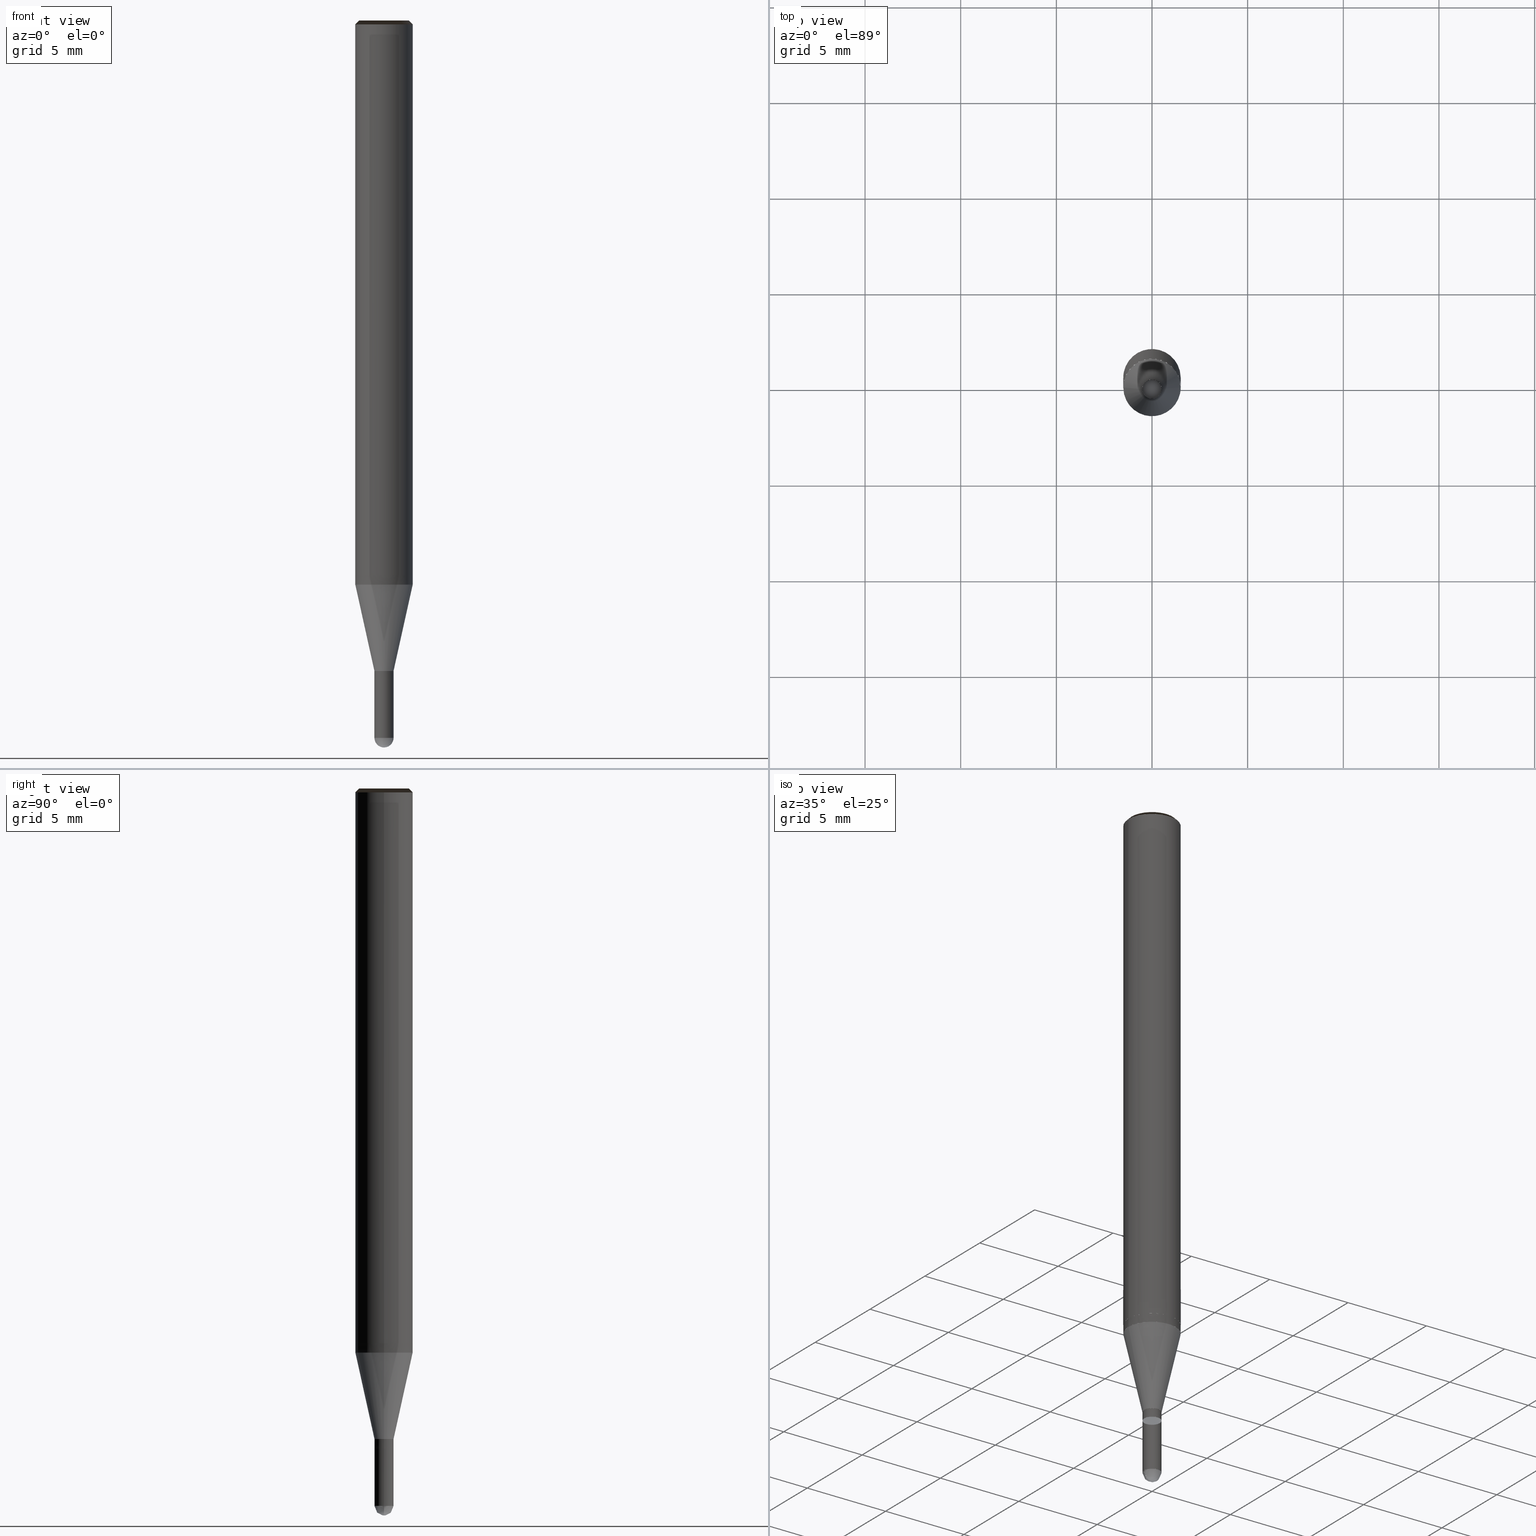
[diagram: canonical four-view strip — front | top / right | iso, engineering-drawing reading convention]
A machine part, canonical four-view strip (front | top / right | iso — engineering-drawing reading convention). The complete STEP part file that produces these views, byte-faithful:
ISO-10303-21;
HEADER;
/* Generated by ISBE GmbH (www.isbe.de) */
/* OPTION: using custom schema-name function */

FILE_DESCRIPTION(
/* description */ (''),
/* implementation_level */ '2;1');

FILE_NAME(
/*name*/ 'Drawing No  1240100   Issue  1',
/*time_stamp*/'2021-9-29T7:41:19',
/*author*/ ('ISBE GmbH'),
/*organization*/ ('ISBE GmbH'),
/*preprocessor_version*/ 'STEP IO v1.0',
/*originating_system*/ '',
/*authorisation*/ '');

FILE_SCHEMA (('AUTOMOTIVE_DESIGN'));
ENDSEC;

DATA;
#10=SHAPE_DEFINITION_REPRESENTATION(#11,#57);
#11=PRODUCT_DEFINITION_SHAPE('Document','',#13);
#12=PRODUCT_DEFINITION_CONTEXT('3D Mechanical Parts',#17,'design');
#13=PRODUCT_DEFINITION('A','First version',#14,#12);
#14=PRODUCT_DEFINITION_FORMATION_WITH_SPECIFIED_SOURCE('A','First version',#19,.MADE.);
#15=PRODUCT_RELATED_PRODUCT_CATEGORY('tool','tool',(#19));
#16=APPLICATION_PROTOCOL_DEFINITION('Draft International Standard', 'automotive_design',1999,#17);
#17=APPLICATION_CONTEXT('data for automotive mechanical design processes');
#18=PRODUCT_CONTEXT('3D Mechanical Parts',#17,'mechanical');
#19=PRODUCT('Document','Document','ISBE converted to STEP',(#18));
#20=(
LENGTH_UNIT()
NAMED_UNIT(*)
SI_UNIT(.MILLI.,.METRE.)
);
#21=(
NAMED_UNIT(*)
PLANE_ANGLE_UNIT()
SI_UNIT($,.RADIAN.)
);
#22=DIMENSIONAL_EXPONENTS(0.,0.,0.,0.,0.,0.,0.);
#23=PLANE_ANGLE_MEASURE_WITH_UNIT(PLANE_ANGLE_MEASURE(0.01745329252),#21);
#24=(
CONVERSION_BASED_UNIT('DEGREES',#23)
NAMED_UNIT(#22)
PLANE_ANGLE_UNIT()
);
#25=(
NAMED_UNIT(*)
SI_UNIT($,.STERADIAN.)
SOLID_ANGLE_UNIT()
);
#26=UNCERTAINTY_MEASURE_WITH_UNIT(LENGTH_MEASURE(0.001),#20, 'DISTANCE_ACCURACY_VALUE', 'Maximum model space distance between geometric entities at asserted connectivities');
#27=(
GEOMETRIC_REPRESENTATION_CONTEXT(3)
GLOBAL_UNCERTAINTY_ASSIGNED_CONTEXT((#26))
GLOBAL_UNIT_ASSIGNED_CONTEXT((#25,#24,#20))
REPRESENTATION_CONTEXT('ID1','3D')
);
#28=CARTESIAN_POINT('',(0.0,0.0,0.0));
#29=DIRECTION('',(1.0,0.0,0.0));
#30=DIRECTION('',(0.0,0.0,1.0));
#31=AXIS2_PLACEMENT_3D('',#28,#30,#29);
#32=CARTESIAN_POINT('',(0.0,0.0,0.0));
#33=DIRECTION('',(1.0,0.0,0.0));
#34=DIRECTION('',(0.0,0.0,1.0));
#35=AXIS2_PLACEMENT_3D('',#32,#34,#33);
#36=CARTESIAN_POINT('',(0.0,0.0,0.0));
#37=DIRECTION('',(1.0,0.0,0.0));
#38=DIRECTION('',(0.0,0.0,1.0));
#39=AXIS2_PLACEMENT_3D('',#36,#38,#37);
#40=CARTESIAN_POINT('',(0.0,0.0,0.0));
#41=DIRECTION('',(0.0,0.0,1.0));
#42=DIRECTION('',(1.0,0.0,0.0));
#43=AXIS2_PLACEMENT_3D('MCS',#40,#42,#41);
#44=CARTESIAN_POINT('',(0.0,0.0,29.0));
#45=DIRECTION('',(0.0,0.0,1.0));
#46=DIRECTION('',(1.0,0.0,0.0));
#47=AXIS2_PLACEMENT_3D('PCS',#44,#46,#45);
#48=CARTESIAN_POINT('',(0.0,0.0,-9.0));
#49=DIRECTION('',(0.0,0.0,1.0));
#50=DIRECTION('',(1.0,0.0,0.0));
#51=AXIS2_PLACEMENT_3D('CIP',#48,#50,#49);
#52=CARTESIAN_POINT('',(0.0,-0.5,-9.0));
#53=DIRECTION('',(0.0,0.0,1.0));
#54=DIRECTION('',(1.0,0.0,0.0));
#55=AXIS2_PLACEMENT_3D('CRP',#52,#54,#53);
#57=SHAPE_REPRESENTATION('Document',(#31,#35,#39,#43,#47,#51,#55),#27);
#58=DIRECTION('',(1.0,0.0,0.0));
#59=DIRECTION('',(0.0,0.0,1.0));
#60=CARTESIAN_POINT('',(-0.004999745345,-0.00005046272,-8.999919850466));
#61=CARTESIAN_POINT('',(-0.004842960385,-0.015276506175,-8.9997431081));
#62=CARTESIAN_POINT('',(-0.00464572897,-0.031696458389,-8.998972696375));
#63=CARTESIAN_POINT('',(-0.004394710529,-0.047809956029,-8.997689556475));
#64=CARTESIAN_POINT('',(-0.00405990923,-0.063809554592,-8.995895006912));
#65=CARTESIAN_POINT('',(-0.003613461023,-0.079718094076,-8.993590891707));
#66=CARTESIAN_POINT('',(-0.00302835103,-0.095531326913,-8.990779578496));
#67=CARTESIAN_POINT('',(-0.002278364859,-0.111237136631,-8.987463956091));
#68=CARTESIAN_POINT('',(-0.001338183743,-0.126820232017,-8.98364743152));
#69=CARTESIAN_POINT('',(-0.000183509393,-0.142263674959,-8.979333926518));
#70=CARTESIAN_POINT('',(0.001208804149,-0.157549471783,-8.974527873505));
#71=CARTESIAN_POINT('',(0.00286061822,-0.17265883142,-8.969234211025));
#72=CARTESIAN_POINT('',(0.004792379331,-0.187572290966,-8.963458378673));
#73=CARTESIAN_POINT('',(0.007022992398,-0.202269785918,-8.957206311508));
#74=CARTESIAN_POINT('',(0.009569698402,-0.216730698426,-8.950484433951));
#75=CARTESIAN_POINT('',(0.012447957291,-0.230933899296,-8.943299653187));
#76=CARTESIAN_POINT('',(0.015671336936,-0.244857791707,-8.935659352062));
#77=CARTESIAN_POINT('',(0.019251408963,-0.258480360904,-8.927571381503));
#78=CARTESIAN_POINT('',(0.023197652257,-0.271779232171,-8.919044052446));
#79=CARTESIAN_POINT('',(0.027517364988,-0.284731738346,-8.910086127298));
#80=CARTESIAN_POINT('',(0.032215585999,-0.297314997418,-8.900706810934));
#81=CARTESIAN_POINT('',(0.037295026389,-0.309506000365,-8.890915741234));
#82=CARTESIAN_POINT('',(0.042756012132,-0.321281709015,-8.880722979185));
#83=CARTESIAN_POINT('',(0.048596438531,-0.332619163494,-8.870138998538));
#84=CARTESIAN_POINT('',(0.054811737272,-0.343495598605,-8.859174675049));
#85=CARTESIAN_POINT('',(0.061394856808,-0.353888568272,-8.847841275302));
#86=CARTESIAN_POINT('',(0.06833625671,-0.363776077082,-8.836150445131));
#87=CARTESIAN_POINT('',(0.075623916555,-0.373136717738,-8.824114197654));
#88=CARTESIAN_POINT('',(0.083243359847,-0.381949813177,-8.811744900929));
#89=CARTESIAN_POINT('',(0.091177693304,-0.390195561959,-8.799055265246));
#90=CARTESIAN_POINT('',(0.099407661785,-0.397855185439,-8.786058330061));
#91=CARTESIAN_POINT('',(0.107911718954,-0.404911075179,-8.772767450605));
#92=CARTESIAN_POINT('',(0.116666113651,-0.411346938977,-8.759196284155));
#93=CARTESIAN_POINT('',(0.125644991799,-0.417147943869,-8.745358776002));
#94=CARTESIAN_POINT('',(0.134820513492,-0.422300854436,-8.73126914512));
#95=CARTESIAN_POINT('',(0.144162984768,-0.426794164739,-8.716941869559));
#96=CARTESIAN_POINT('',(0.153641003417,-0.430618222271,-8.702391671561));
#97=CARTESIAN_POINT('',(0.163221617973,-0.433765342309,-8.68763350244));
#98=CARTESIAN_POINT('',(0.172870498926,-0.436229911167,-8.672682527211));
#99=CARTESIAN_POINT('',(0.182552121012,-0.438008476913,-8.657554109012));
#100=CARTESIAN_POINT('',(0.192229955294,-0.439099826235,-8.642263793316));
#101=CARTESIAN_POINT('',(0.201866669635,-0.43950504628,-8.626827291955));
#102=CARTESIAN_POINT('',(0.211424336029,-0.439227570426,-8.611260466978));
#103=CARTESIAN_POINT('',(0.220864643153,-0.438273207113,-8.595579314351));
#104=CARTESIAN_POINT('',(0.230149112446,-0.436650151055,-8.579799947517));
#105=CARTESIAN_POINT('',(0.239239315921,-0.434368976329,-8.563938580842));
#106=CARTESIAN_POINT('',(0.248097093905,-0.431442611039,-8.548011512954));
#107=CARTESIAN_POINT('',(0.256684770868,-0.427886293462,-8.53203510999));
#108=CARTESIAN_POINT('',(0.264965367515,-0.4237175098,-8.516025788786));
#109=CARTESIAN_POINT('',(0.272902807337,-0.418955913847,-8.5));
#110=CARTESIAN_POINT('',(0.296295683547,-0.402751620619,-8.450704225352));
#111=CARTESIAN_POINT('',(0.318728791934,-0.385242725035,-8.401408450704));
#112=CARTESIAN_POINT('',(0.340129466653,-0.366485942315,-8.352112676056));
#113=CARTESIAN_POINT('',(0.360428386145,-0.346542029862,-8.302816901408));
#114=CARTESIAN_POINT('',(0.379559797681,-0.325475590459,-8.253521126761));
#115=CARTESIAN_POINT('',(0.397461730349,-0.303354863003,-8.204225352113));
#116=CARTESIAN_POINT('',(0.414076195797,-0.280251501466,-8.154929577465));
#117=CARTESIAN_POINT('',(0.429349376065,-0.25624034279,-8.105633802817));
#118=CARTESIAN_POINT('',(0.443231797912,-0.231399164474,-8.056338028169));
#119=CARTESIAN_POINT('',(0.455678493079,-0.205808432639,-8.007042253521));
#120=CARTESIAN_POINT('',(0.466649143942,-0.179551041373,-7.957746478873));
#121=CARTESIAN_POINT('',(0.476108214116,-0.152712044225,-7.908450704225));
#122=CARTESIAN_POINT('',(0.484025063562,-0.125378378695,-7.859154929577));
#123=CARTESIAN_POINT('',(0.490374047838,-0.097638584624,-7.80985915493));
#124=CARTESIAN_POINT('',(0.495134601167,-0.069582517393,-7.760563380282));
#125=CARTESIAN_POINT('',(0.498291303057,-0.041301056864,-7.711267605634));
#126=CARTESIAN_POINT('',(0.499833928244,-0.012885812998,-7.661971830986));
#127=CARTESIAN_POINT('',(0.499757479821,0.015571170892,-7.612676056338));
#128=CARTESIAN_POINT('',(0.498062205423,0.043977716285,-7.56338028169));
#129=CARTESIAN_POINT('',(0.49475359642,0.072241808043,-7.514084507042));
#130=CARTESIAN_POINT('',(0.489842370137,0.100271892468,-7.464788732394));
#131=CARTESIAN_POINT('',(0.483344435129,0.127977173861,-7.415492957746));
#132=CARTESIAN_POINT('',(0.47528083966,0.155267908636,-7.366197183099));
#133=CARTESIAN_POINT('',(0.465677703513,0.182055696014,-7.316901408451));
#134=CARTESIAN_POINT('',(0.454566133389,0.208253764374,-7.267605633803));
#135=CARTESIAN_POINT('',(0.441982122142,0.23377725233,-7.218309859155));
#136=CARTESIAN_POINT('',(0.427966432193,0.258543483608,-7.169014084507));
#137=CARTESIAN_POINT('',(0.412564463488,0.282472234859,-7.119718309859));
#138=CARTESIAN_POINT('',(0.395826106441,0.305485995521,-7.070422535211));
#139=CARTESIAN_POINT('',(0.377805580324,0.327510218888,-7.021126760563));
#140=CARTESIAN_POINT('',(0.358561257641,0.348473563587,-6.971830985915));
#141=CARTESIAN_POINT('',(0.338155475048,0.368308124666,-6.922535211268));
#142=CARTESIAN_POINT('',(0.316654331427,0.386949653558,-6.87323943662));
#143=CARTESIAN_POINT('',(0.294127473779,0.404337766191,-6.823943661972));
#144=CARTESIAN_POINT('',(0.270647871621,0.42041613859,-6.774647887324));
#145=CARTESIAN_POINT('',(0.246291580625,0.435132689318,-6.725352112676));
#146=CARTESIAN_POINT('',(0.221137496249,0.448439748185,-6.676056338028));
#147=CARTESIAN_POINT('',(0.195267098187,0.460294210659,-6.62676056338));
#148=CARTESIAN_POINT('',(0.168764186427,0.470657677489,-6.577464788732));
#149=CARTESIAN_POINT('',(0.141714609816,0.479496579096,-6.528169014085));
#150=CARTESIAN_POINT('',(0.114205987967,0.486782284304,-6.478873239437));
#151=CARTESIAN_POINT('',(0.086327427442,0.49249119309,-6.429577464789));
#152=CARTESIAN_POINT('',(0.05816923312,0.496604813024,-6.380281690141));
#153=CARTESIAN_POINT('',(0.029822615673,0.499109819172,-6.330985915493));
#154=CARTESIAN_POINT('',(0.001379396121,0.499998097263,-6.281690140845));
#155=CARTESIAN_POINT('',(-0.027068291603,0.499266769963,-6.232394366197));
#156=CARTESIAN_POINT('',(-0.055428299091,0.496918206207,-6.183098591549));
#157=CARTESIAN_POINT('',(-0.083608761952,0.492960013515,-6.133802816901));
#158=CARTESIAN_POINT('',(-0.11151839738,0.487405013357,-6.084507042254));
#159=CARTESIAN_POINT('',(-0.139066799838,0.480271199618,-6.035211267606));
#160=CARTESIAN_POINT('',(-0.166164733904,0.471581680313,-5.985915492958));
#161=CARTESIAN_POINT('',(-0.192724423326,0.461364602732,-5.93661971831));
#162=CARTESIAN_POINT('',(-0.218659835342,0.449653062269,-5.887323943662));
#163=CARTESIAN_POINT('',(-0.243886959367,0.436484995218,-5.838028169014));
#164=CARTESIAN_POINT('',(-0.268324079119,0.421903055885,-5.788732394366));
#165=CARTESIAN_POINT('',(-0.291892037313,0.405954478425,-5.739436619718));
#166=CARTESIAN_POINT('',(-0.314514492076,0.388690923838,-5.69014084507));
#167=CARTESIAN_POINT('',(-0.336118164229,0.37016831263,-5.640845070423));
#168=CARTESIAN_POINT('',(-0.356633074658,0.350446643671,-5.591549295775));
#169=CARTESIAN_POINT('',(-0.375992770991,0.329589799846,-5.542253521127));
#170=CARTESIAN_POINT('',(0.004999745345,0.00005046272,-8.999919850466));
#171=CARTESIAN_POINT('',(0.004842960385,0.015276506175,-8.9997431081));
#172=CARTESIAN_POINT('',(0.00464572897,0.031696458389,-8.998972696375));
#173=CARTESIAN_POINT('',(0.004394710529,0.047809956029,-8.997689556475));
#174=CARTESIAN_POINT('',(0.00405990923,0.063809554592,-8.995895006912));
#175=CARTESIAN_POINT('',(0.003613461023,0.079718094076,-8.993590891707));
#176=CARTESIAN_POINT('',(0.00302835103,0.095531326913,-8.990779578496));
#177=CARTESIAN_POINT('',(0.002278364859,0.111237136631,-8.987463956091));
#178=CARTESIAN_POINT('',(0.001338183743,0.126820232017,-8.98364743152));
#179=CARTESIAN_POINT('',(0.000183509393,0.142263674959,-8.979333926518));
#180=CARTESIAN_POINT('',(-0.001208804149,0.157549471783,-8.974527873505));
#181=CARTESIAN_POINT('',(-0.00286061822,0.17265883142,-8.969234211025));
#182=CARTESIAN_POINT('',(-0.004792379331,0.187572290966,-8.963458378673));
#183=CARTESIAN_POINT('',(-0.007022992398,0.202269785918,-8.957206311508));
#184=CARTESIAN_POINT('',(-0.009569698402,0.216730698426,-8.950484433951));
#185=CARTESIAN_POINT('',(-0.012447957291,0.230933899296,-8.943299653187));
#186=CARTESIAN_POINT('',(-0.015671336936,0.244857791707,-8.935659352062));
#187=CARTESIAN_POINT('',(-0.019251408963,0.258480360904,-8.927571381503));
#188=CARTESIAN_POINT('',(-0.023197652257,0.271779232171,-8.919044052446));
#189=CARTESIAN_POINT('',(-0.027517364988,0.284731738346,-8.910086127298));
#190=CARTESIAN_POINT('',(-0.032215585999,0.297314997418,-8.900706810934));
#191=CARTESIAN_POINT('',(-0.037295026389,0.309506000365,-8.890915741234));
#192=CARTESIAN_POINT('',(-0.042756012132,0.321281709015,-8.880722979185));
#193=CARTESIAN_POINT('',(-0.048596438531,0.332619163494,-8.870138998538));
#194=CARTESIAN_POINT('',(-0.054811737272,0.343495598605,-8.859174675049));
#195=CARTESIAN_POINT('',(-0.061394856808,0.353888568272,-8.847841275302));
#196=CARTESIAN_POINT('',(-0.06833625671,0.363776077082,-8.836150445131));
#197=CARTESIAN_POINT('',(-0.075623916555,0.373136717738,-8.824114197654));
#198=CARTESIAN_POINT('',(-0.083243359847,0.381949813177,-8.811744900929));
#199=CARTESIAN_POINT('',(-0.091177693304,0.390195561959,-8.799055265246));
#200=CARTESIAN_POINT('',(-0.099407661785,0.397855185439,-8.786058330061));
#201=CARTESIAN_POINT('',(-0.107911718954,0.404911075179,-8.772767450605));
#202=CARTESIAN_POINT('',(-0.116666113651,0.411346938977,-8.759196284155));
#203=CARTESIAN_POINT('',(-0.125644991799,0.417147943869,-8.745358776002));
#204=CARTESIAN_POINT('',(-0.134820513492,0.422300854436,-8.73126914512));
#205=CARTESIAN_POINT('',(-0.144162984768,0.426794164739,-8.716941869559));
#206=CARTESIAN_POINT('',(-0.153641003417,0.430618222271,-8.702391671561));
#207=CARTESIAN_POINT('',(-0.163221617973,0.433765342309,-8.68763350244));
#208=CARTESIAN_POINT('',(-0.172870498926,0.436229911167,-8.672682527211));
#209=CARTESIAN_POINT('',(-0.182552121012,0.438008476913,-8.657554109012));
#210=CARTESIAN_POINT('',(-0.192229955294,0.439099826235,-8.642263793316));
#211=CARTESIAN_POINT('',(-0.201866669635,0.43950504628,-8.626827291955));
#212=CARTESIAN_POINT('',(-0.211424336029,0.439227570426,-8.611260466978));
#213=CARTESIAN_POINT('',(-0.220864643153,0.438273207113,-8.595579314351));
#214=CARTESIAN_POINT('',(-0.230149112446,0.436650151055,-8.579799947517));
#215=CARTESIAN_POINT('',(-0.239239315921,0.434368976329,-8.563938580842));
#216=CARTESIAN_POINT('',(-0.248097093905,0.431442611039,-8.548011512954));
#217=CARTESIAN_POINT('',(-0.256684770868,0.427886293462,-8.53203510999));
#218=CARTESIAN_POINT('',(-0.264965367515,0.4237175098,-8.516025788786));
#219=CARTESIAN_POINT('',(-0.272902807337,0.418955913847,-8.5));
#220=CARTESIAN_POINT('',(-0.296295683547,0.402751620619,-8.450704225352));
#221=CARTESIAN_POINT('',(-0.318728791934,0.385242725035,-8.401408450704));
#222=CARTESIAN_POINT('',(-0.340129466653,0.366485942315,-8.352112676056));
#223=CARTESIAN_POINT('',(-0.360428386145,0.346542029862,-8.302816901408));
#224=CARTESIAN_POINT('',(-0.379559797681,0.325475590459,-8.253521126761));
#225=CARTESIAN_POINT('',(-0.397461730349,0.303354863003,-8.204225352113));
#226=CARTESIAN_POINT('',(-0.414076195797,0.280251501466,-8.154929577465));
#227=CARTESIAN_POINT('',(-0.429349376065,0.25624034279,-8.105633802817));
#228=CARTESIAN_POINT('',(-0.443231797912,0.231399164474,-8.056338028169));
#229=CARTESIAN_POINT('',(-0.455678493079,0.205808432639,-8.007042253521));
#230=CARTESIAN_POINT('',(-0.466649143942,0.179551041373,-7.957746478873));
#231=CARTESIAN_POINT('',(-0.476108214116,0.152712044225,-7.908450704225));
#232=CARTESIAN_POINT('',(-0.484025063562,0.125378378695,-7.859154929577));
#233=CARTESIAN_POINT('',(-0.490374047838,0.097638584624,-7.80985915493));
#234=CARTESIAN_POINT('',(-0.495134601167,0.069582517393,-7.760563380282));
#235=CARTESIAN_POINT('',(-0.498291303057,0.041301056864,-7.711267605634));
#236=CARTESIAN_POINT('',(-0.499833928244,0.012885812998,-7.661971830986));
#237=CARTESIAN_POINT('',(-0.499757479821,-0.015571170892,-7.612676056338));
#238=CARTESIAN_POINT('',(-0.498062205423,-0.043977716285,-7.56338028169));
#239=CARTESIAN_POINT('',(-0.49475359642,-0.072241808043,-7.514084507042));
#240=CARTESIAN_POINT('',(-0.489842370137,-0.100271892468,-7.464788732394));
#241=CARTESIAN_POINT('',(-0.483344435129,-0.127977173861,-7.415492957746));
#242=CARTESIAN_POINT('',(-0.47528083966,-0.155267908636,-7.366197183099));
#243=CARTESIAN_POINT('',(-0.465677703513,-0.182055696014,-7.316901408451));
#244=CARTESIAN_POINT('',(-0.454566133389,-0.208253764374,-7.267605633803));
#245=CARTESIAN_POINT('',(-0.441982122142,-0.23377725233,-7.218309859155));
#246=CARTESIAN_POINT('',(-0.427966432193,-0.258543483608,-7.169014084507));
#247=CARTESIAN_POINT('',(-0.412564463488,-0.282472234859,-7.119718309859));
#248=CARTESIAN_POINT('',(-0.395826106441,-0.305485995521,-7.070422535211));
#249=CARTESIAN_POINT('',(-0.377805580324,-0.327510218888,-7.021126760563));
#250=CARTESIAN_POINT('',(-0.358561257641,-0.348473563587,-6.971830985915));
#251=CARTESIAN_POINT('',(-0.338155475048,-0.368308124666,-6.922535211268));
#252=CARTESIAN_POINT('',(-0.316654331427,-0.386949653558,-6.87323943662));
#253=CARTESIAN_POINT('',(-0.294127473779,-0.404337766191,-6.823943661972));
#254=CARTESIAN_POINT('',(-0.270647871621,-0.42041613859,-6.774647887324));
#255=CARTESIAN_POINT('',(-0.246291580625,-0.435132689318,-6.725352112676));
#256=CARTESIAN_POINT('',(-0.221137496249,-0.448439748185,-6.676056338028));
#257=CARTESIAN_POINT('',(-0.195267098187,-0.460294210659,-6.62676056338));
#258=CARTESIAN_POINT('',(-0.168764186427,-0.470657677489,-6.577464788732));
#259=CARTESIAN_POINT('',(-0.141714609816,-0.479496579096,-6.528169014085));
#260=CARTESIAN_POINT('',(-0.114205987967,-0.486782284304,-6.478873239437));
#261=CARTESIAN_POINT('',(-0.086327427442,-0.49249119309,-6.429577464789));
#262=CARTESIAN_POINT('',(-0.05816923312,-0.496604813024,-6.380281690141));
#263=CARTESIAN_POINT('',(-0.029822615673,-0.499109819172,-6.330985915493));
#264=CARTESIAN_POINT('',(-0.001379396121,-0.499998097263,-6.281690140845));
#265=CARTESIAN_POINT('',(0.027068291603,-0.499266769963,-6.232394366197));
#266=CARTESIAN_POINT('',(0.055428299091,-0.496918206207,-6.183098591549));
#267=CARTESIAN_POINT('',(0.083608761952,-0.492960013515,-6.133802816901));
#268=CARTESIAN_POINT('',(0.11151839738,-0.487405013357,-6.084507042254));
#269=CARTESIAN_POINT('',(0.139066799838,-0.480271199618,-6.035211267606));
#270=CARTESIAN_POINT('',(0.166164733904,-0.471581680313,-5.985915492958));
#271=CARTESIAN_POINT('',(0.192724423326,-0.461364602732,-5.93661971831));
#272=CARTESIAN_POINT('',(0.218659835342,-0.449653062269,-5.887323943662));
#273=CARTESIAN_POINT('',(0.243886959367,-0.436484995218,-5.838028169014));
#274=CARTESIAN_POINT('',(0.268324079119,-0.421903055885,-5.788732394366));
#275=CARTESIAN_POINT('',(0.291892037313,-0.405954478425,-5.739436619718));
#276=CARTESIAN_POINT('',(0.314514492076,-0.388690923838,-5.69014084507));
#277=CARTESIAN_POINT('',(0.336118164229,-0.37016831263,-5.640845070423));
#278=CARTESIAN_POINT('',(0.356633074658,-0.350446643671,-5.591549295775));
#279=CARTESIAN_POINT('',(0.375992770991,-0.329589799846,-5.542253521127));
#280=CARTESIAN_POINT('',(0.0,0.0,-9.0));
#281=CARTESIAN_POINT('',(0.5,0.0,-9.0));
#282=CARTESIAN_POINT('',(0.5,0.5,-9.0));
#283=CARTESIAN_POINT('',(0.0,0.5,-9.0));
#284=CARTESIAN_POINT('',(-0.5,0.5,-9.0));
#285=CARTESIAN_POINT('',(-0.5,0.0,-9.0));
#286=CARTESIAN_POINT('',(0.5,0.0,-8.5));
#287=CARTESIAN_POINT('',(0.5,0.5,-8.5));
#288=CARTESIAN_POINT('',(0.0,0.5,-8.5));
#289=CARTESIAN_POINT('',(-0.5,0.5,-8.5));
#290=CARTESIAN_POINT('',(-0.5,0.0,-8.5));
#291=CARTESIAN_POINT('',(0.5,0.0,-5.5));
#292=CARTESIAN_POINT('',(0.5,0.5,-5.5));
#293=CARTESIAN_POINT('',(0.0,0.5,-5.5));
#294=CARTESIAN_POINT('',(-0.5,0.5,-5.5));
#295=CARTESIAN_POINT('',(-0.5,0.0,-5.5));
#296=CARTESIAN_POINT('',(0.0,0.0,-5.5));
#297=CARTESIAN_POINT('',(-0.5,-0.5,-9.0));
#298=CARTESIAN_POINT('',(0.0,-0.5,-9.0));
#299=CARTESIAN_POINT('',(0.5,-0.5,-9.0));
#300=CARTESIAN_POINT('',(-0.5,-0.5,-8.5));
#301=CARTESIAN_POINT('',(0.0,-0.5,-8.5));
#302=CARTESIAN_POINT('',(0.5,-0.5,-8.5));
#303=CARTESIAN_POINT('',(-0.5,-0.5,-5.5));
#304=CARTESIAN_POINT('',(0.0,-0.5,-5.5));
#305=CARTESIAN_POINT('',(0.5,-0.5,-5.5));
#306=CARTESIAN_POINT('',(0.5,0.0,-5.0));
#307=CARTESIAN_POINT('',(0.5,0.5,-5.0));
#308=CARTESIAN_POINT('',(0.0,0.5,-5.0));
#309=CARTESIAN_POINT('',(-0.5,0.5,-5.0));
#310=CARTESIAN_POINT('',(-0.5,0.0,-5.0));
#311=CARTESIAN_POINT('',(1.5,0.0,-0.489291496338));
#312=CARTESIAN_POINT('',(1.5,1.5,-0.489291496338));
#313=CARTESIAN_POINT('',(0.0,1.5,-0.489291496338));
#314=CARTESIAN_POINT('',(-1.5,1.5,-0.489291496338));
#315=CARTESIAN_POINT('',(-1.5,0.0,-0.489291496338));
#316=CARTESIAN_POINT('',(1.5,0.0,0.0));
#317=CARTESIAN_POINT('',(1.5,1.5,0.0));
#318=CARTESIAN_POINT('',(0.0,1.5,0.0));
#319=CARTESIAN_POINT('',(-1.5,1.5,0.0));
#320=CARTESIAN_POINT('',(-1.5,0.0,0.0));
#321=CARTESIAN_POINT('',(1.5,0.0,28.8));
#322=CARTESIAN_POINT('',(1.5,1.5,28.8));
#323=CARTESIAN_POINT('',(0.0,1.5,28.8));
#324=CARTESIAN_POINT('',(-1.5,1.5,28.8));
#325=CARTESIAN_POINT('',(-1.5,0.0,28.8));
#326=CARTESIAN_POINT('',(1.3,0.0,29.0));
#327=CARTESIAN_POINT('',(1.3,1.3,29.0));
#328=CARTESIAN_POINT('',(0.0,1.3,29.0));
#329=CARTESIAN_POINT('',(-1.3,1.3,29.0));
#330=CARTESIAN_POINT('',(-1.3,0.0,29.0));
#331=CARTESIAN_POINT('',(0.0,0.0,29.0));
#332=CARTESIAN_POINT('',(-0.5,-0.5,-5.0));
#333=CARTESIAN_POINT('',(0.0,-0.5,-5.0));
#334=CARTESIAN_POINT('',(0.5,-0.5,-5.0));
#335=CARTESIAN_POINT('',(-1.5,-1.5,-0.489291496338));
#336=CARTESIAN_POINT('',(0.0,-1.5,-0.489291496338));
#337=CARTESIAN_POINT('',(1.5,-1.5,-0.489291496338));
#338=CARTESIAN_POINT('',(-1.5,-1.5,0.0));
#339=CARTESIAN_POINT('',(0.0,-1.5,0.0));
#340=CARTESIAN_POINT('',(1.5,-1.5,0.0));
#341=CARTESIAN_POINT('',(-1.5,-1.5,28.8));
#342=CARTESIAN_POINT('',(0.0,-1.5,28.8));
#343=CARTESIAN_POINT('',(1.5,-1.5,28.8));
#344=CARTESIAN_POINT('',(-1.3,-1.3,29.0));
#345=CARTESIAN_POINT('',(0.0,-1.3,29.0));
#346=CARTESIAN_POINT('',(1.3,-1.3,29.0));
#347=(
BOUNDED_CURVE()
B_SPLINE_CURVE(1,(#60,#61,#62,#63,#64,#65,#66,#67,#68,#69,#70,#71,#72,#73,#74,#75,#76,#77,#78,#79,#80,#81,#82,#83,#84,#85,#86,#87,#88,#89,#90,#91,#92,#93,#94,#95,#96,#97,#98,#99,#100,#101,#102,#103,#104,#105,#106,#107,#108,#109,#110,#111,#112,#113,#114,#115,#116,#117,#118,#119,#120,#121,#122,#123,#124,#125,#126,#127,#128,#129,#130,#131,#132,#133,#134,#135,#136,#137,#138,#139,#140,#141,#142,#143,#144,#145,#146,#147,#148,#149,#150,#151,#152,#153,#154,#155,#156,#157,#158,#159,#160,#161,#162,#163,#164,#165,#166,#167,#168,#169),.UNSPECIFIED.,.F.,.F.)
B_SPLINE_CURVE_WITH_KNOTS((2,1,1,1,1,1,1,1,1,1,1,1,1,1,1,1,1,1,1,1,1,1,1,1,1,1,1,1,1,1,1,1,1,1,1,1,1,1,1,1,1,1,1,1,1,1,1,1,1,1,1,1,1,1,1,1,1,1,1,1,1,1,1,1,1,1,1,1,1,1,1,1,1,1,1,1,1,1,1,1,1,1,1,1,1,1,1,1,1,1,1,1,1,1,1,1,1,1,1,1,1,1,1,1,1,1,1,1,1,2),
(0.0,0.003584441347,0.007454012083,0.011259382447,0.015049911704,0.018835103656,0.022618203849,0.026400748348,0.030183691049,0.033967782346,0.037753723502,0.041542238313,0.045334108913,0.049130193623,0.052931434479,0.056738858,0.060553571044,0.06437675279,0.068209643535,0.072053530848,0.075909733528,0.079779583813,0.08366440828,0.087565507885,0.09148413758,0.095421485952,0.099378655308,0.103356642601,0.107356321575,0.111378426433,0.115423537324,0.119492067857,0.123584254828,0.127700150272,0.131839615907,0.136002320007,0.140187736668,0.144395147433,0.148623645173,0.152872140127,0.157139367967,0.161423899738,0.165724153528,0.170038407691,0.174364815457,0.17870142077,0.183046175157,0.187396955473,0.191751582344,0.196107839132,0.209506041813,0.222904244494,0.236302447176,0.249700649857,0.263098852538,0.276497055219,0.2898952579,0.303293460581,0.316691663262,0.330089865944,0.343488068625,0.356886271306,0.370284473987,0.383682676668,0.397080879349,0.41047908203,0.423877284711,0.437275487393,0.450673690074,0.464071892755,0.477470095436,0.490868298117,0.504266500798,0.517664703479,0.53106290616,0.544461108842,0.557859311523,0.571257514204,0.584655716885,0.598053919566,0.611452122247,0.624850324928,0.63824852761,0.651646730291,0.665044932972,0.678443135653,0.691841338334,0.705239541015,0.718637743696,0.732035946377,0.745434149059,0.75883235174,0.772230554421,0.785628757102,0.799026959783,0.812425162464,0.825823365145,0.839221567826,0.852619770508,0.866017973189,0.87941617587,0.892814378551,0.906212581232,0.919610783913,0.933008986594,0.946407189275,0.959805391957,0.973203594638,0.986601797319,1.0),.UNSPECIFIED.)
CURVE()
GEOMETRIC_REPRESENTATION_ITEM()
RATIONAL_B_SPLINE_CURVE((1.0,1.0,1.0,1.0,1.0,1.0,1.0,1.0,1.0,1.0,1.0,1.0,1.0,1.0,1.0,1.0,1.0,1.0,1.0,1.0,1.0,1.0,1.0,1.0,1.0,1.0,1.0,1.0,1.0,1.0,1.0,1.0,1.0,1.0,1.0,1.0,1.0,1.0,1.0,1.0,1.0,1.0,1.0,1.0,1.0,1.0,1.0,1.0,1.0,1.0,1.0,1.0,1.0,1.0,1.0,1.0,1.0,1.0,1.0,1.0,1.0,1.0,1.0,1.0,1.0,1.0,1.0,1.0,1.0,1.0,1.0,1.0,1.0,1.0,1.0,1.0,1.0,1.0,1.0,1.0,1.0,1.0,1.0,1.0,1.0,1.0,1.0,1.0,1.0,1.0,1.0,1.0,1.0,1.0,1.0,1.0,1.0,1.0,1.0,1.0,1.0,1.0,1.0,1.0,1.0,1.0,1.0,1.0,1.0,1.0))
REPRESENTATION_ITEM('')
);
#348=(
BOUNDED_CURVE()
B_SPLINE_CURVE(1,(#170,#171,#172,#173,#174,#175,#176,#177,#178,#179,#180,#181,#182,#183,#184,#185,#186,#187,#188,#189,#190,#191,#192,#193,#194,#195,#196,#197,#198,#199,#200,#201,#202,#203,#204,#205,#206,#207,#208,#209,#210,#211,#212,#213,#214,#215,#216,#217,#218,#219,#220,#221,#222,#223,#224,#225,#226,#227,#228,#229,#230,#231,#232,#233,#234,#235,#236,#237,#238,#239,#240,#241,#242,#243,#244,#245,#246,#247,#248,#249,#250,#251,#252,#253,#254,#255,#256,#257,#258,#259,#260,#261,#262,#263,#264,#265,#266,#267,#268,#269,#270,#271,#272,#273,#274,#275,#276,#277,#278,#279),.UNSPECIFIED.,.F.,.F.)
B_SPLINE_CURVE_WITH_KNOTS((2,1,1,1,1,1,1,1,1,1,1,1,1,1,1,1,1,1,1,1,1,1,1,1,1,1,1,1,1,1,1,1,1,1,1,1,1,1,1,1,1,1,1,1,1,1,1,1,1,1,1,1,1,1,1,1,1,1,1,1,1,1,1,1,1,1,1,1,1,1,1,1,1,1,1,1,1,1,1,1,1,1,1,1,1,1,1,1,1,1,1,1,1,1,1,1,1,1,1,1,1,1,1,1,1,1,1,1,1,2),
(0.0,0.003584441347,0.007454012083,0.011259382447,0.015049911704,0.018835103656,0.022618203849,0.026400748348,0.030183691049,0.033967782346,0.037753723502,0.041542238313,0.045334108913,0.049130193623,0.052931434479,0.056738858,0.060553571044,0.06437675279,0.068209643535,0.072053530848,0.075909733528,0.079779583813,0.08366440828,0.087565507885,0.09148413758,0.095421485952,0.099378655308,0.103356642601,0.107356321575,0.111378426433,0.115423537324,0.119492067857,0.123584254828,0.127700150272,0.131839615907,0.136002320007,0.140187736668,0.144395147433,0.148623645173,0.152872140127,0.157139367967,0.161423899738,0.165724153528,0.170038407691,0.174364815457,0.17870142077,0.183046175157,0.187396955473,0.191751582344,0.196107839132,0.209506041813,0.222904244494,0.236302447176,0.249700649857,0.263098852538,0.276497055219,0.2898952579,0.303293460581,0.316691663262,0.330089865944,0.343488068625,0.356886271306,0.370284473987,0.383682676668,0.397080879349,0.41047908203,0.423877284711,0.437275487393,0.450673690074,0.464071892755,0.477470095436,0.490868298117,0.504266500798,0.517664703479,0.53106290616,0.544461108842,0.557859311523,0.571257514204,0.584655716885,0.598053919566,0.611452122247,0.624850324928,0.63824852761,0.651646730291,0.665044932972,0.678443135653,0.691841338334,0.705239541015,0.718637743696,0.732035946377,0.745434149059,0.75883235174,0.772230554421,0.785628757102,0.799026959783,0.812425162464,0.825823365145,0.839221567826,0.852619770508,0.866017973189,0.87941617587,0.892814378551,0.906212581232,0.919610783913,0.933008986594,0.946407189275,0.959805391957,0.973203594638,0.986601797319,1.0),.UNSPECIFIED.)
CURVE()
GEOMETRIC_REPRESENTATION_ITEM()
RATIONAL_B_SPLINE_CURVE((1.0,1.0,1.0,1.0,1.0,1.0,1.0,1.0,1.0,1.0,1.0,1.0,1.0,1.0,1.0,1.0,1.0,1.0,1.0,1.0,1.0,1.0,1.0,1.0,1.0,1.0,1.0,1.0,1.0,1.0,1.0,1.0,1.0,1.0,1.0,1.0,1.0,1.0,1.0,1.0,1.0,1.0,1.0,1.0,1.0,1.0,1.0,1.0,1.0,1.0,1.0,1.0,1.0,1.0,1.0,1.0,1.0,1.0,1.0,1.0,1.0,1.0,1.0,1.0,1.0,1.0,1.0,1.0,1.0,1.0,1.0,1.0,1.0,1.0,1.0,1.0,1.0,1.0,1.0,1.0,1.0,1.0,1.0,1.0,1.0,1.0,1.0,1.0,1.0,1.0,1.0,1.0,1.0,1.0,1.0,1.0,1.0,1.0,1.0,1.0,1.0,1.0,1.0,1.0,1.0,1.0,1.0,1.0,1.0,1.0))
REPRESENTATION_ITEM('')
);
#349=SHAPE_REPRESENTATION_RELATIONSHIP('','',#57,#350);
#350=GEOMETRICALLY_BOUNDED_WIREFRAME_SHAPE_REPRESENTATION('Curves',(#351,#31),#27);
#351=GEOMETRIC_CURVE_SET('CurveSet',(#347,#348));
#352=(
BOUNDED_SURFACE()
B_SPLINE_SURFACE(2,2,(
(#280,#280,#280,#280,#280),
(#281,#282,#283,#284,#285),
(#286,#287,#288,#289,#290)
), .UNSPECIFIED.,.F.,.F.,.F.)
B_SPLINE_SURFACE_WITH_KNOTS((3,3),(3,2,3),(
0.0,1.0),(
0.0,0.5,1.0), .UNSPECIFIED.)
GEOMETRIC_REPRESENTATION_ITEM()
RATIONAL_B_SPLINE_SURFACE(((1.0,0.707106781187,1.0,0.707106781187,1.0),
(0.707106781187,0.5,0.707106781187,0.5,0.707106781187),
(1.0,0.707106781187,1.0,0.707106781187,1.0)
))
REPRESENTATION_ITEM('')
SURFACE()
);
#353=(
BOUNDED_CURVE()
B_SPLINE_CURVE(2,(#290,#285,#280),.UNSPECIFIED.,.F.,.F.)
B_SPLINE_CURVE_WITH_KNOTS((3,3),
(0.0,1.0),.UNSPECIFIED.)
CURVE()
GEOMETRIC_REPRESENTATION_ITEM()
RATIONAL_B_SPLINE_CURVE((1.0,0.707106781187,1.0))
REPRESENTATION_ITEM('')
);
#354=(
BOUNDED_CURVE()
B_SPLINE_CURVE(2,(#280,#281,#286),.UNSPECIFIED.,.F.,.F.)
B_SPLINE_CURVE_WITH_KNOTS((3,3),
(0.0,1.0),.UNSPECIFIED.)
CURVE()
GEOMETRIC_REPRESENTATION_ITEM()
RATIONAL_B_SPLINE_CURVE((1.0,0.707106781187,1.0))
REPRESENTATION_ITEM('')
);
#355=(
BOUNDED_CURVE()
B_SPLINE_CURVE(2,(#286,#287,#288,#289,#290),.UNSPECIFIED.,.F.,.F.)
B_SPLINE_CURVE_WITH_KNOTS((3,2,3),
(0.0,0.5,1.0),.UNSPECIFIED.)
CURVE()
GEOMETRIC_REPRESENTATION_ITEM()
RATIONAL_B_SPLINE_CURVE((1.0,0.707106781187,1.0,0.707106781187,1.0))
REPRESENTATION_ITEM('')
);
#356=VERTEX_POINT('',#280);
#357=VERTEX_POINT('',#286);
#358=VERTEX_POINT('',#290);
#359=EDGE_CURVE('',#358,#356,#353,.T.);
#360=EDGE_CURVE('',#356,#357,#354,.T.);
#361=EDGE_CURVE('',#357,#358,#355,.T.);
#362=ORIENTED_EDGE('',*,*,#359,.T.);
#363=ORIENTED_EDGE('',*,*,#360,.T.);
#364=ORIENTED_EDGE('',*,*,#361,.T.);
#365=EDGE_LOOP('',(#362,#363,#364));
#366=FACE_OUTER_BOUND('',#365,.T.);
#367=ADVANCED_FACE('',(#366),#352,.T.);
#368=(
BOUNDED_SURFACE()
B_SPLINE_SURFACE(1,2,(
(#286,#287,#288,#289,#290),
(#291,#292,#293,#294,#295)
), .UNSPECIFIED.,.F.,.F.,.F.)
B_SPLINE_SURFACE_WITH_KNOTS((2,2),(3,2,3),(
0.0,1.0),(
0.0,0.5,1.0), .UNSPECIFIED.)
GEOMETRIC_REPRESENTATION_ITEM()
RATIONAL_B_SPLINE_SURFACE(((1.0,0.707106781187,1.0,0.707106781187,1.0),
(1.0,0.707106781187,1.0,0.707106781187,1.0)
))
REPRESENTATION_ITEM('')
SURFACE()
);
#369=(
BOUNDED_CURVE()
B_SPLINE_CURVE(2,(#290,#289,#288,#287,#286),.UNSPECIFIED.,.F.,.F.)
B_SPLINE_CURVE_WITH_KNOTS((3,2,3),
(0.0,0.5,1.0),.UNSPECIFIED.)
CURVE()
GEOMETRIC_REPRESENTATION_ITEM()
RATIONAL_B_SPLINE_CURVE((1.0,0.707106781187,1.0,0.707106781187,1.0))
REPRESENTATION_ITEM('')
);
#370=(
BOUNDED_CURVE()
B_SPLINE_CURVE(1,(#286,#291),.UNSPECIFIED.,.F.,.F.)
B_SPLINE_CURVE_WITH_KNOTS((2,2),
(0.0,1.0),.UNSPECIFIED.)
CURVE()
GEOMETRIC_REPRESENTATION_ITEM()
RATIONAL_B_SPLINE_CURVE((1.0,1.0))
REPRESENTATION_ITEM('')
);
#371=(
BOUNDED_CURVE()
B_SPLINE_CURVE(2,(#291,#292,#293,#294,#295),.UNSPECIFIED.,.F.,.F.)
B_SPLINE_CURVE_WITH_KNOTS((3,2,3),
(0.0,0.5,1.0),.UNSPECIFIED.)
CURVE()
GEOMETRIC_REPRESENTATION_ITEM()
RATIONAL_B_SPLINE_CURVE((1.0,0.707106781187,1.0,0.707106781187,1.0))
REPRESENTATION_ITEM('')
);
#372=(
BOUNDED_CURVE()
B_SPLINE_CURVE(1,(#295,#290),.UNSPECIFIED.,.F.,.F.)
B_SPLINE_CURVE_WITH_KNOTS((2,2),
(0.0,1.0),.UNSPECIFIED.)
CURVE()
GEOMETRIC_REPRESENTATION_ITEM()
RATIONAL_B_SPLINE_CURVE((1.0,1.0))
REPRESENTATION_ITEM('')
);
#373=VERTEX_POINT('',#286);
#374=VERTEX_POINT('',#290);
#375=VERTEX_POINT('',#291);
#376=VERTEX_POINT('',#295);
#377=EDGE_CURVE('',#374,#373,#369,.T.);
#378=EDGE_CURVE('',#373,#375,#370,.T.);
#379=EDGE_CURVE('',#375,#376,#371,.T.);
#380=EDGE_CURVE('',#376,#374,#372,.T.);
#381=ORIENTED_EDGE('',*,*,#377,.T.);
#382=ORIENTED_EDGE('',*,*,#378,.T.);
#383=ORIENTED_EDGE('',*,*,#379,.T.);
#384=ORIENTED_EDGE('',*,*,#380,.T.);
#385=EDGE_LOOP('',(#381,#382,#383,#384));
#386=FACE_OUTER_BOUND('',#385,.T.);
#387=ADVANCED_FACE('',(#386),#368,.T.);
#388=(
BOUNDED_SURFACE()
B_SPLINE_SURFACE(1,2,(
(#291,#292,#293,#294,#295),
(#296,#296,#296,#296,#296)
), .UNSPECIFIED.,.F.,.F.,.F.)
B_SPLINE_SURFACE_WITH_KNOTS((2,2),(3,2,3),(
0.0,1.0),(
0.0,0.5,1.0), .UNSPECIFIED.)
GEOMETRIC_REPRESENTATION_ITEM()
RATIONAL_B_SPLINE_SURFACE(((1.0,0.707106781187,1.0,0.707106781187,1.0),
(1.0,0.707106781187,1.0,0.707106781187,1.0)
))
REPRESENTATION_ITEM('')
SURFACE()
);
#389=(
BOUNDED_CURVE()
B_SPLINE_CURVE(2,(#295,#294,#293,#292,#291),.UNSPECIFIED.,.F.,.F.)
B_SPLINE_CURVE_WITH_KNOTS((3,2,3),
(0.0,0.5,1.0),.UNSPECIFIED.)
CURVE()
GEOMETRIC_REPRESENTATION_ITEM()
RATIONAL_B_SPLINE_CURVE((1.0,0.707106781187,1.0,0.707106781187,1.0))
REPRESENTATION_ITEM('')
);
#390=(
BOUNDED_CURVE()
B_SPLINE_CURVE(1,(#291,#296),.UNSPECIFIED.,.F.,.F.)
B_SPLINE_CURVE_WITH_KNOTS((2,2),
(0.0,1.0),.UNSPECIFIED.)
CURVE()
GEOMETRIC_REPRESENTATION_ITEM()
RATIONAL_B_SPLINE_CURVE((1.0,1.0))
REPRESENTATION_ITEM('')
);
#391=(
BOUNDED_CURVE()
B_SPLINE_CURVE(1,(#296,#295),.UNSPECIFIED.,.F.,.F.)
B_SPLINE_CURVE_WITH_KNOTS((2,2),
(0.0,1.0),.UNSPECIFIED.)
CURVE()
GEOMETRIC_REPRESENTATION_ITEM()
RATIONAL_B_SPLINE_CURVE((1.0,1.0))
REPRESENTATION_ITEM('')
);
#392=VERTEX_POINT('',#291);
#393=VERTEX_POINT('',#295);
#394=VERTEX_POINT('',#296);
#395=EDGE_CURVE('',#393,#392,#389,.T.);
#396=EDGE_CURVE('',#392,#394,#390,.T.);
#397=EDGE_CURVE('',#394,#393,#391,.T.);
#398=ORIENTED_EDGE('',*,*,#395,.T.);
#399=ORIENTED_EDGE('',*,*,#396,.T.);
#400=ORIENTED_EDGE('',*,*,#397,.T.);
#401=EDGE_LOOP('',(#398,#399,#400));
#402=FACE_OUTER_BOUND('',#401,.T.);
#403=ADVANCED_FACE('',(#402),#388,.T.);
#404=(
BOUNDED_SURFACE()
B_SPLINE_SURFACE(2,2,(
(#280,#280,#280,#280,#280),
(#285,#297,#298,#299,#281),
(#290,#300,#301,#302,#286)
), .UNSPECIFIED.,.F.,.F.,.F.)
B_SPLINE_SURFACE_WITH_KNOTS((3,3),(3,2,3),(
0.0,1.0),(
0.0,0.5,1.0), .UNSPECIFIED.)
GEOMETRIC_REPRESENTATION_ITEM()
RATIONAL_B_SPLINE_SURFACE(((1.0,0.707106781187,1.0,0.707106781187,1.0),
(0.707106781187,0.5,0.707106781187,0.5,0.707106781187),
(1.0,0.707106781187,1.0,0.707106781187,1.0)
))
REPRESENTATION_ITEM('')
SURFACE()
);
#405=(
BOUNDED_CURVE()
B_SPLINE_CURVE(2,(#286,#281,#280),.UNSPECIFIED.,.F.,.F.)
B_SPLINE_CURVE_WITH_KNOTS((3,3),
(0.0,1.0),.UNSPECIFIED.)
CURVE()
GEOMETRIC_REPRESENTATION_ITEM()
RATIONAL_B_SPLINE_CURVE((1.0,0.707106781187,1.0))
REPRESENTATION_ITEM('')
);
#406=(
BOUNDED_CURVE()
B_SPLINE_CURVE(2,(#280,#285,#290),.UNSPECIFIED.,.F.,.F.)
B_SPLINE_CURVE_WITH_KNOTS((3,3),
(0.0,1.0),.UNSPECIFIED.)
CURVE()
GEOMETRIC_REPRESENTATION_ITEM()
RATIONAL_B_SPLINE_CURVE((1.0,0.707106781187,1.0))
REPRESENTATION_ITEM('')
);
#407=(
BOUNDED_CURVE()
B_SPLINE_CURVE(2,(#290,#300,#301,#302,#286),.UNSPECIFIED.,.F.,.F.)
B_SPLINE_CURVE_WITH_KNOTS((3,2,3),
(0.0,0.5,1.0),.UNSPECIFIED.)
CURVE()
GEOMETRIC_REPRESENTATION_ITEM()
RATIONAL_B_SPLINE_CURVE((1.0,0.707106781187,1.0,0.707106781187,1.0))
REPRESENTATION_ITEM('')
);
#408=VERTEX_POINT('',#280);
#409=VERTEX_POINT('',#286);
#410=VERTEX_POINT('',#290);
#411=EDGE_CURVE('',#409,#408,#405,.T.);
#412=EDGE_CURVE('',#408,#410,#406,.T.);
#413=EDGE_CURVE('',#410,#409,#407,.T.);
#414=ORIENTED_EDGE('',*,*,#411,.T.);
#415=ORIENTED_EDGE('',*,*,#412,.T.);
#416=ORIENTED_EDGE('',*,*,#413,.T.);
#417=EDGE_LOOP('',(#414,#415,#416));
#418=FACE_OUTER_BOUND('',#417,.T.);
#419=ADVANCED_FACE('',(#418),#404,.T.);
#420=(
BOUNDED_SURFACE()
B_SPLINE_SURFACE(1,2,(
(#290,#300,#301,#302,#286),
(#295,#303,#304,#305,#291)
), .UNSPECIFIED.,.F.,.F.,.F.)
B_SPLINE_SURFACE_WITH_KNOTS((2,2),(3,2,3),(
0.0,1.0),(
0.0,0.5,1.0), .UNSPECIFIED.)
GEOMETRIC_REPRESENTATION_ITEM()
RATIONAL_B_SPLINE_SURFACE(((1.0,0.707106781187,1.0,0.707106781187,1.0),
(1.0,0.707106781187,1.0,0.707106781187,1.0)
))
REPRESENTATION_ITEM('')
SURFACE()
);
#421=(
BOUNDED_CURVE()
B_SPLINE_CURVE(2,(#286,#302,#301,#300,#290),.UNSPECIFIED.,.F.,.F.)
B_SPLINE_CURVE_WITH_KNOTS((3,2,3),
(0.0,0.5,1.0),.UNSPECIFIED.)
CURVE()
GEOMETRIC_REPRESENTATION_ITEM()
RATIONAL_B_SPLINE_CURVE((1.0,0.707106781187,1.0,0.707106781187,1.0))
REPRESENTATION_ITEM('')
);
#422=(
BOUNDED_CURVE()
B_SPLINE_CURVE(1,(#290,#295),.UNSPECIFIED.,.F.,.F.)
B_SPLINE_CURVE_WITH_KNOTS((2,2),
(0.0,1.0),.UNSPECIFIED.)
CURVE()
GEOMETRIC_REPRESENTATION_ITEM()
RATIONAL_B_SPLINE_CURVE((1.0,1.0))
REPRESENTATION_ITEM('')
);
#423=(
BOUNDED_CURVE()
B_SPLINE_CURVE(2,(#295,#303,#304,#305,#291),.UNSPECIFIED.,.F.,.F.)
B_SPLINE_CURVE_WITH_KNOTS((3,2,3),
(0.0,0.5,1.0),.UNSPECIFIED.)
CURVE()
GEOMETRIC_REPRESENTATION_ITEM()
RATIONAL_B_SPLINE_CURVE((1.0,0.707106781187,1.0,0.707106781187,1.0))
REPRESENTATION_ITEM('')
);
#424=(
BOUNDED_CURVE()
B_SPLINE_CURVE(1,(#291,#286),.UNSPECIFIED.,.F.,.F.)
B_SPLINE_CURVE_WITH_KNOTS((2,2),
(0.0,1.0),.UNSPECIFIED.)
CURVE()
GEOMETRIC_REPRESENTATION_ITEM()
RATIONAL_B_SPLINE_CURVE((1.0,1.0))
REPRESENTATION_ITEM('')
);
#425=VERTEX_POINT('',#286);
#426=VERTEX_POINT('',#290);
#427=VERTEX_POINT('',#291);
#428=VERTEX_POINT('',#295);
#429=EDGE_CURVE('',#425,#426,#421,.T.);
#430=EDGE_CURVE('',#426,#428,#422,.T.);
#431=EDGE_CURVE('',#428,#427,#423,.T.);
#432=EDGE_CURVE('',#427,#425,#424,.T.);
#433=ORIENTED_EDGE('',*,*,#429,.T.);
#434=ORIENTED_EDGE('',*,*,#430,.T.);
#435=ORIENTED_EDGE('',*,*,#431,.T.);
#436=ORIENTED_EDGE('',*,*,#432,.T.);
#437=EDGE_LOOP('',(#433,#434,#435,#436));
#438=FACE_OUTER_BOUND('',#437,.T.);
#439=ADVANCED_FACE('',(#438),#420,.T.);
#440=(
BOUNDED_SURFACE()
B_SPLINE_SURFACE(1,2,(
(#295,#303,#304,#305,#291),
(#296,#296,#296,#296,#296)
), .UNSPECIFIED.,.F.,.F.,.F.)
B_SPLINE_SURFACE_WITH_KNOTS((2,2),(3,2,3),(
0.0,1.0),(
0.0,0.5,1.0), .UNSPECIFIED.)
GEOMETRIC_REPRESENTATION_ITEM()
RATIONAL_B_SPLINE_SURFACE(((1.0,0.707106781187,1.0,0.707106781187,1.0),
(1.0,0.707106781187,1.0,0.707106781187,1.0)
))
REPRESENTATION_ITEM('')
SURFACE()
);
#441=(
BOUNDED_CURVE()
B_SPLINE_CURVE(2,(#291,#305,#304,#303,#295),.UNSPECIFIED.,.F.,.F.)
B_SPLINE_CURVE_WITH_KNOTS((3,2,3),
(0.0,0.5,1.0),.UNSPECIFIED.)
CURVE()
GEOMETRIC_REPRESENTATION_ITEM()
RATIONAL_B_SPLINE_CURVE((1.0,0.707106781187,1.0,0.707106781187,1.0))
REPRESENTATION_ITEM('')
);
#442=(
BOUNDED_CURVE()
B_SPLINE_CURVE(1,(#295,#296),.UNSPECIFIED.,.F.,.F.)
B_SPLINE_CURVE_WITH_KNOTS((2,2),
(0.0,1.0),.UNSPECIFIED.)
CURVE()
GEOMETRIC_REPRESENTATION_ITEM()
RATIONAL_B_SPLINE_CURVE((1.0,1.0))
REPRESENTATION_ITEM('')
);
#443=(
BOUNDED_CURVE()
B_SPLINE_CURVE(1,(#296,#291),.UNSPECIFIED.,.F.,.F.)
B_SPLINE_CURVE_WITH_KNOTS((2,2),
(0.0,1.0),.UNSPECIFIED.)
CURVE()
GEOMETRIC_REPRESENTATION_ITEM()
RATIONAL_B_SPLINE_CURVE((1.0,1.0))
REPRESENTATION_ITEM('')
);
#444=VERTEX_POINT('',#291);
#445=VERTEX_POINT('',#295);
#446=VERTEX_POINT('',#296);
#447=EDGE_CURVE('',#444,#445,#441,.T.);
#448=EDGE_CURVE('',#445,#446,#442,.T.);
#449=EDGE_CURVE('',#446,#444,#443,.T.);
#450=ORIENTED_EDGE('',*,*,#447,.T.);
#451=ORIENTED_EDGE('',*,*,#448,.T.);
#452=ORIENTED_EDGE('',*,*,#449,.T.);
#453=EDGE_LOOP('',(#450,#451,#452));
#454=FACE_OUTER_BOUND('',#453,.T.);
#455=ADVANCED_FACE('',(#454),#440,.T.);
#456=CLOSED_SHELL('',(#367,#387,#403,#419,#439,#455));
#457=SHAPE_REPRESENTATION_RELATIONSHIP('','',#57,#458);
#458=ADVANCED_BREP_SHAPE_REPRESENTATION('Solid0',(#459,#31),#27);
#459=MANIFOLD_SOLID_BREP('brep',#456);
#460=(
BOUNDED_SURFACE()
B_SPLINE_SURFACE(1,2,(
(#296,#296,#296,#296,#296),
(#291,#292,#293,#294,#295)
), .UNSPECIFIED.,.F.,.F.,.F.)
B_SPLINE_SURFACE_WITH_KNOTS((2,2),(3,2,3),(
0.0,1.0),(
0.0,0.5,1.0), .UNSPECIFIED.)
GEOMETRIC_REPRESENTATION_ITEM()
RATIONAL_B_SPLINE_SURFACE(((1.0,0.707106781187,1.0,0.707106781187,1.0),
(1.0,0.707106781187,1.0,0.707106781187,1.0)
))
REPRESENTATION_ITEM('')
SURFACE()
);
#461=(
BOUNDED_CURVE()
B_SPLINE_CURVE(1,(#295,#296),.UNSPECIFIED.,.F.,.F.)
B_SPLINE_CURVE_WITH_KNOTS((2,2),
(0.0,1.0),.UNSPECIFIED.)
CURVE()
GEOMETRIC_REPRESENTATION_ITEM()
RATIONAL_B_SPLINE_CURVE((1.0,1.0))
REPRESENTATION_ITEM('')
);
#462=(
BOUNDED_CURVE()
B_SPLINE_CURVE(1,(#296,#291),.UNSPECIFIED.,.F.,.F.)
B_SPLINE_CURVE_WITH_KNOTS((2,2),
(0.0,1.0),.UNSPECIFIED.)
CURVE()
GEOMETRIC_REPRESENTATION_ITEM()
RATIONAL_B_SPLINE_CURVE((1.0,1.0))
REPRESENTATION_ITEM('')
);
#463=(
BOUNDED_CURVE()
B_SPLINE_CURVE(2,(#291,#292,#293,#294,#295),.UNSPECIFIED.,.F.,.F.)
B_SPLINE_CURVE_WITH_KNOTS((3,2,3),
(0.0,0.5,1.0),.UNSPECIFIED.)
CURVE()
GEOMETRIC_REPRESENTATION_ITEM()
RATIONAL_B_SPLINE_CURVE((1.0,0.707106781187,1.0,0.707106781187,1.0))
REPRESENTATION_ITEM('')
);
#464=VERTEX_POINT('',#291);
#465=VERTEX_POINT('',#295);
#466=VERTEX_POINT('',#296);
#467=EDGE_CURVE('',#465,#466,#461,.T.);
#468=EDGE_CURVE('',#466,#464,#462,.T.);
#469=EDGE_CURVE('',#464,#465,#463,.T.);
#470=ORIENTED_EDGE('',*,*,#467,.T.);
#471=ORIENTED_EDGE('',*,*,#468,.T.);
#472=ORIENTED_EDGE('',*,*,#469,.T.);
#473=EDGE_LOOP('',(#470,#471,#472));
#474=FACE_OUTER_BOUND('',#473,.T.);
#475=ADVANCED_FACE('',(#474),#460,.T.);
#476=(
BOUNDED_SURFACE()
B_SPLINE_SURFACE(1,2,(
(#291,#292,#293,#294,#295),
(#306,#307,#308,#309,#310)
), .UNSPECIFIED.,.F.,.F.,.F.)
B_SPLINE_SURFACE_WITH_KNOTS((2,2),(3,2,3),(
0.0,1.0),(
0.0,0.5,1.0), .UNSPECIFIED.)
GEOMETRIC_REPRESENTATION_ITEM()
RATIONAL_B_SPLINE_SURFACE(((1.0,0.707106781187,1.0,0.707106781187,1.0),
(1.0,0.707106781187,1.0,0.707106781187,1.0)
))
REPRESENTATION_ITEM('')
SURFACE()
);
#477=(
BOUNDED_CURVE()
B_SPLINE_CURVE(2,(#295,#294,#293,#292,#291),.UNSPECIFIED.,.F.,.F.)
B_SPLINE_CURVE_WITH_KNOTS((3,2,3),
(0.0,0.5,1.0),.UNSPECIFIED.)
CURVE()
GEOMETRIC_REPRESENTATION_ITEM()
RATIONAL_B_SPLINE_CURVE((1.0,0.707106781187,1.0,0.707106781187,1.0))
REPRESENTATION_ITEM('')
);
#478=(
BOUNDED_CURVE()
B_SPLINE_CURVE(1,(#291,#306),.UNSPECIFIED.,.F.,.F.)
B_SPLINE_CURVE_WITH_KNOTS((2,2),
(0.0,1.0),.UNSPECIFIED.)
CURVE()
GEOMETRIC_REPRESENTATION_ITEM()
RATIONAL_B_SPLINE_CURVE((1.0,1.0))
REPRESENTATION_ITEM('')
);
#479=(
BOUNDED_CURVE()
B_SPLINE_CURVE(2,(#306,#307,#308,#309,#310),.UNSPECIFIED.,.F.,.F.)
B_SPLINE_CURVE_WITH_KNOTS((3,2,3),
(0.0,0.5,1.0),.UNSPECIFIED.)
CURVE()
GEOMETRIC_REPRESENTATION_ITEM()
RATIONAL_B_SPLINE_CURVE((1.0,0.707106781187,1.0,0.707106781187,1.0))
REPRESENTATION_ITEM('')
);
#480=(
BOUNDED_CURVE()
B_SPLINE_CURVE(1,(#310,#295),.UNSPECIFIED.,.F.,.F.)
B_SPLINE_CURVE_WITH_KNOTS((2,2),
(0.0,1.0),.UNSPECIFIED.)
CURVE()
GEOMETRIC_REPRESENTATION_ITEM()
RATIONAL_B_SPLINE_CURVE((1.0,1.0))
REPRESENTATION_ITEM('')
);
#481=VERTEX_POINT('',#291);
#482=VERTEX_POINT('',#295);
#483=VERTEX_POINT('',#306);
#484=VERTEX_POINT('',#310);
#485=EDGE_CURVE('',#482,#481,#477,.T.);
#486=EDGE_CURVE('',#481,#483,#478,.T.);
#487=EDGE_CURVE('',#483,#484,#479,.T.);
#488=EDGE_CURVE('',#484,#482,#480,.T.);
#489=ORIENTED_EDGE('',*,*,#485,.T.);
#490=ORIENTED_EDGE('',*,*,#486,.T.);
#491=ORIENTED_EDGE('',*,*,#487,.T.);
#492=ORIENTED_EDGE('',*,*,#488,.T.);
#493=EDGE_LOOP('',(#489,#490,#491,#492));
#494=FACE_OUTER_BOUND('',#493,.T.);
#495=ADVANCED_FACE('',(#494),#476,.T.);
#496=(
BOUNDED_SURFACE()
B_SPLINE_SURFACE(1,2,(
(#306,#307,#308,#309,#310),
(#311,#312,#313,#314,#315)
), .UNSPECIFIED.,.F.,.F.,.F.)
B_SPLINE_SURFACE_WITH_KNOTS((2,2),(3,2,3),(
0.0,1.0),(
0.0,0.5,1.0), .UNSPECIFIED.)
GEOMETRIC_REPRESENTATION_ITEM()
RATIONAL_B_SPLINE_SURFACE(((1.0,0.707106781187,1.0,0.707106781187,1.0),
(1.0,0.707106781187,1.0,0.707106781187,1.0)
))
REPRESENTATION_ITEM('')
SURFACE()
);
#497=(
BOUNDED_CURVE()
B_SPLINE_CURVE(2,(#310,#309,#308,#307,#306),.UNSPECIFIED.,.F.,.F.)
B_SPLINE_CURVE_WITH_KNOTS((3,2,3),
(0.0,0.5,1.0),.UNSPECIFIED.)
CURVE()
GEOMETRIC_REPRESENTATION_ITEM()
RATIONAL_B_SPLINE_CURVE((1.0,0.707106781187,1.0,0.707106781187,1.0))
REPRESENTATION_ITEM('')
);
#498=(
BOUNDED_CURVE()
B_SPLINE_CURVE(1,(#306,#311),.UNSPECIFIED.,.F.,.F.)
B_SPLINE_CURVE_WITH_KNOTS((2,2),
(0.0,1.0),.UNSPECIFIED.)
CURVE()
GEOMETRIC_REPRESENTATION_ITEM()
RATIONAL_B_SPLINE_CURVE((1.0,1.0))
REPRESENTATION_ITEM('')
);
#499=(
BOUNDED_CURVE()
B_SPLINE_CURVE(2,(#311,#312,#313,#314,#315),.UNSPECIFIED.,.F.,.F.)
B_SPLINE_CURVE_WITH_KNOTS((3,2,3),
(0.0,0.5,1.0),.UNSPECIFIED.)
CURVE()
GEOMETRIC_REPRESENTATION_ITEM()
RATIONAL_B_SPLINE_CURVE((1.0,0.707106781187,1.0,0.707106781187,1.0))
REPRESENTATION_ITEM('')
);
#500=(
BOUNDED_CURVE()
B_SPLINE_CURVE(1,(#315,#310),.UNSPECIFIED.,.F.,.F.)
B_SPLINE_CURVE_WITH_KNOTS((2,2),
(0.0,1.0),.UNSPECIFIED.)
CURVE()
GEOMETRIC_REPRESENTATION_ITEM()
RATIONAL_B_SPLINE_CURVE((1.0,1.0))
REPRESENTATION_ITEM('')
);
#501=VERTEX_POINT('',#306);
#502=VERTEX_POINT('',#310);
#503=VERTEX_POINT('',#311);
#504=VERTEX_POINT('',#315);
#505=EDGE_CURVE('',#502,#501,#497,.T.);
#506=EDGE_CURVE('',#501,#503,#498,.T.);
#507=EDGE_CURVE('',#503,#504,#499,.T.);
#508=EDGE_CURVE('',#504,#502,#500,.T.);
#509=ORIENTED_EDGE('',*,*,#505,.T.);
#510=ORIENTED_EDGE('',*,*,#506,.T.);
#511=ORIENTED_EDGE('',*,*,#507,.T.);
#512=ORIENTED_EDGE('',*,*,#508,.T.);
#513=EDGE_LOOP('',(#509,#510,#511,#512));
#514=FACE_OUTER_BOUND('',#513,.T.);
#515=ADVANCED_FACE('',(#514),#496,.T.);
#516=(
BOUNDED_SURFACE()
B_SPLINE_SURFACE(1,2,(
(#311,#312,#313,#314,#315),
(#316,#317,#318,#319,#320)
), .UNSPECIFIED.,.F.,.F.,.F.)
B_SPLINE_SURFACE_WITH_KNOTS((2,2),(3,2,3),(
0.0,1.0),(
0.0,0.5,1.0), .UNSPECIFIED.)
GEOMETRIC_REPRESENTATION_ITEM()
RATIONAL_B_SPLINE_SURFACE(((1.0,0.707106781187,1.0,0.707106781187,1.0),
(1.0,0.707106781187,1.0,0.707106781187,1.0)
))
REPRESENTATION_ITEM('')
SURFACE()
);
#517=(
BOUNDED_CURVE()
B_SPLINE_CURVE(2,(#315,#314,#313,#312,#311),.UNSPECIFIED.,.F.,.F.)
B_SPLINE_CURVE_WITH_KNOTS((3,2,3),
(0.0,0.5,1.0),.UNSPECIFIED.)
CURVE()
GEOMETRIC_REPRESENTATION_ITEM()
RATIONAL_B_SPLINE_CURVE((1.0,0.707106781187,1.0,0.707106781187,1.0))
REPRESENTATION_ITEM('')
);
#518=(
BOUNDED_CURVE()
B_SPLINE_CURVE(1,(#311,#316),.UNSPECIFIED.,.F.,.F.)
B_SPLINE_CURVE_WITH_KNOTS((2,2),
(0.0,1.0),.UNSPECIFIED.)
CURVE()
GEOMETRIC_REPRESENTATION_ITEM()
RATIONAL_B_SPLINE_CURVE((1.0,1.0))
REPRESENTATION_ITEM('')
);
#519=(
BOUNDED_CURVE()
B_SPLINE_CURVE(2,(#316,#317,#318,#319,#320),.UNSPECIFIED.,.F.,.F.)
B_SPLINE_CURVE_WITH_KNOTS((3,2,3),
(0.0,0.5,1.0),.UNSPECIFIED.)
CURVE()
GEOMETRIC_REPRESENTATION_ITEM()
RATIONAL_B_SPLINE_CURVE((1.0,0.707106781187,1.0,0.707106781187,1.0))
REPRESENTATION_ITEM('')
);
#520=(
BOUNDED_CURVE()
B_SPLINE_CURVE(1,(#320,#315),.UNSPECIFIED.,.F.,.F.)
B_SPLINE_CURVE_WITH_KNOTS((2,2),
(0.0,1.0),.UNSPECIFIED.)
CURVE()
GEOMETRIC_REPRESENTATION_ITEM()
RATIONAL_B_SPLINE_CURVE((1.0,1.0))
REPRESENTATION_ITEM('')
);
#521=VERTEX_POINT('',#311);
#522=VERTEX_POINT('',#315);
#523=VERTEX_POINT('',#316);
#524=VERTEX_POINT('',#320);
#525=EDGE_CURVE('',#522,#521,#517,.T.);
#526=EDGE_CURVE('',#521,#523,#518,.T.);
#527=EDGE_CURVE('',#523,#524,#519,.T.);
#528=EDGE_CURVE('',#524,#522,#520,.T.);
#529=ORIENTED_EDGE('',*,*,#525,.T.);
#530=ORIENTED_EDGE('',*,*,#526,.T.);
#531=ORIENTED_EDGE('',*,*,#527,.T.);
#532=ORIENTED_EDGE('',*,*,#528,.T.);
#533=EDGE_LOOP('',(#529,#530,#531,#532));
#534=FACE_OUTER_BOUND('',#533,.T.);
#535=ADVANCED_FACE('',(#534),#516,.T.);
#536=(
BOUNDED_SURFACE()
B_SPLINE_SURFACE(1,2,(
(#316,#317,#318,#319,#320),
(#321,#322,#323,#324,#325)
), .UNSPECIFIED.,.F.,.F.,.F.)
B_SPLINE_SURFACE_WITH_KNOTS((2,2),(3,2,3),(
0.0,1.0),(
0.0,0.5,1.0), .UNSPECIFIED.)
GEOMETRIC_REPRESENTATION_ITEM()
RATIONAL_B_SPLINE_SURFACE(((1.0,0.707106781187,1.0,0.707106781187,1.0),
(1.0,0.707106781187,1.0,0.707106781187,1.0)
))
REPRESENTATION_ITEM('')
SURFACE()
);
#537=(
BOUNDED_CURVE()
B_SPLINE_CURVE(2,(#320,#319,#318,#317,#316),.UNSPECIFIED.,.F.,.F.)
B_SPLINE_CURVE_WITH_KNOTS((3,2,3),
(0.0,0.5,1.0),.UNSPECIFIED.)
CURVE()
GEOMETRIC_REPRESENTATION_ITEM()
RATIONAL_B_SPLINE_CURVE((1.0,0.707106781187,1.0,0.707106781187,1.0))
REPRESENTATION_ITEM('')
);
#538=(
BOUNDED_CURVE()
B_SPLINE_CURVE(1,(#316,#321),.UNSPECIFIED.,.F.,.F.)
B_SPLINE_CURVE_WITH_KNOTS((2,2),
(0.0,1.0),.UNSPECIFIED.)
CURVE()
GEOMETRIC_REPRESENTATION_ITEM()
RATIONAL_B_SPLINE_CURVE((1.0,1.0))
REPRESENTATION_ITEM('')
);
#539=(
BOUNDED_CURVE()
B_SPLINE_CURVE(2,(#321,#322,#323,#324,#325),.UNSPECIFIED.,.F.,.F.)
B_SPLINE_CURVE_WITH_KNOTS((3,2,3),
(0.0,0.5,1.0),.UNSPECIFIED.)
CURVE()
GEOMETRIC_REPRESENTATION_ITEM()
RATIONAL_B_SPLINE_CURVE((1.0,0.707106781187,1.0,0.707106781187,1.0))
REPRESENTATION_ITEM('')
);
#540=(
BOUNDED_CURVE()
B_SPLINE_CURVE(1,(#325,#320),.UNSPECIFIED.,.F.,.F.)
B_SPLINE_CURVE_WITH_KNOTS((2,2),
(0.0,1.0),.UNSPECIFIED.)
CURVE()
GEOMETRIC_REPRESENTATION_ITEM()
RATIONAL_B_SPLINE_CURVE((1.0,1.0))
REPRESENTATION_ITEM('')
);
#541=VERTEX_POINT('',#316);
#542=VERTEX_POINT('',#320);
#543=VERTEX_POINT('',#321);
#544=VERTEX_POINT('',#325);
#545=EDGE_CURVE('',#542,#541,#537,.T.);
#546=EDGE_CURVE('',#541,#543,#538,.T.);
#547=EDGE_CURVE('',#543,#544,#539,.T.);
#548=EDGE_CURVE('',#544,#542,#540,.T.);
#549=ORIENTED_EDGE('',*,*,#545,.T.);
#550=ORIENTED_EDGE('',*,*,#546,.T.);
#551=ORIENTED_EDGE('',*,*,#547,.T.);
#552=ORIENTED_EDGE('',*,*,#548,.T.);
#553=EDGE_LOOP('',(#549,#550,#551,#552));
#554=FACE_OUTER_BOUND('',#553,.T.);
#555=ADVANCED_FACE('',(#554),#536,.T.);
#556=(
BOUNDED_SURFACE()
B_SPLINE_SURFACE(1,2,(
(#321,#322,#323,#324,#325),
(#326,#327,#328,#329,#330)
), .UNSPECIFIED.,.F.,.F.,.F.)
B_SPLINE_SURFACE_WITH_KNOTS((2,2),(3,2,3),(
0.0,1.0),(
0.0,0.5,1.0), .UNSPECIFIED.)
GEOMETRIC_REPRESENTATION_ITEM()
RATIONAL_B_SPLINE_SURFACE(((1.0,0.707106781187,1.0,0.707106781187,1.0),
(1.0,0.707106781187,1.0,0.707106781187,1.0)
))
REPRESENTATION_ITEM('')
SURFACE()
);
#557=(
BOUNDED_CURVE()
B_SPLINE_CURVE(2,(#325,#324,#323,#322,#321),.UNSPECIFIED.,.F.,.F.)
B_SPLINE_CURVE_WITH_KNOTS((3,2,3),
(0.0,0.5,1.0),.UNSPECIFIED.)
CURVE()
GEOMETRIC_REPRESENTATION_ITEM()
RATIONAL_B_SPLINE_CURVE((1.0,0.707106781187,1.0,0.707106781187,1.0))
REPRESENTATION_ITEM('')
);
#558=(
BOUNDED_CURVE()
B_SPLINE_CURVE(1,(#321,#326),.UNSPECIFIED.,.F.,.F.)
B_SPLINE_CURVE_WITH_KNOTS((2,2),
(0.0,1.0),.UNSPECIFIED.)
CURVE()
GEOMETRIC_REPRESENTATION_ITEM()
RATIONAL_B_SPLINE_CURVE((1.0,1.0))
REPRESENTATION_ITEM('')
);
#559=(
BOUNDED_CURVE()
B_SPLINE_CURVE(2,(#326,#327,#328,#329,#330),.UNSPECIFIED.,.F.,.F.)
B_SPLINE_CURVE_WITH_KNOTS((3,2,3),
(0.0,0.5,1.0),.UNSPECIFIED.)
CURVE()
GEOMETRIC_REPRESENTATION_ITEM()
RATIONAL_B_SPLINE_CURVE((1.0,0.707106781187,1.0,0.707106781187,1.0))
REPRESENTATION_ITEM('')
);
#560=(
BOUNDED_CURVE()
B_SPLINE_CURVE(1,(#330,#325),.UNSPECIFIED.,.F.,.F.)
B_SPLINE_CURVE_WITH_KNOTS((2,2),
(0.0,1.0),.UNSPECIFIED.)
CURVE()
GEOMETRIC_REPRESENTATION_ITEM()
RATIONAL_B_SPLINE_CURVE((1.0,1.0))
REPRESENTATION_ITEM('')
);
#561=VERTEX_POINT('',#321);
#562=VERTEX_POINT('',#325);
#563=VERTEX_POINT('',#326);
#564=VERTEX_POINT('',#330);
#565=EDGE_CURVE('',#562,#561,#557,.T.);
#566=EDGE_CURVE('',#561,#563,#558,.T.);
#567=EDGE_CURVE('',#563,#564,#559,.T.);
#568=EDGE_CURVE('',#564,#562,#560,.T.);
#569=ORIENTED_EDGE('',*,*,#565,.T.);
#570=ORIENTED_EDGE('',*,*,#566,.T.);
#571=ORIENTED_EDGE('',*,*,#567,.T.);
#572=ORIENTED_EDGE('',*,*,#568,.T.);
#573=EDGE_LOOP('',(#569,#570,#571,#572));
#574=FACE_OUTER_BOUND('',#573,.T.);
#575=ADVANCED_FACE('',(#574),#556,.T.);
#576=(
BOUNDED_SURFACE()
B_SPLINE_SURFACE(1,2,(
(#326,#327,#328,#329,#330),
(#331,#331,#331,#331,#331)
), .UNSPECIFIED.,.F.,.F.,.F.)
B_SPLINE_SURFACE_WITH_KNOTS((2,2),(3,2,3),(
0.0,1.0),(
0.0,0.5,1.0), .UNSPECIFIED.)
GEOMETRIC_REPRESENTATION_ITEM()
RATIONAL_B_SPLINE_SURFACE(((1.0,0.707106781187,1.0,0.707106781187,1.0),
(1.0,0.707106781187,1.0,0.707106781187,1.0)
))
REPRESENTATION_ITEM('')
SURFACE()
);
#577=(
BOUNDED_CURVE()
B_SPLINE_CURVE(2,(#330,#329,#328,#327,#326),.UNSPECIFIED.,.F.,.F.)
B_SPLINE_CURVE_WITH_KNOTS((3,2,3),
(0.0,0.5,1.0),.UNSPECIFIED.)
CURVE()
GEOMETRIC_REPRESENTATION_ITEM()
RATIONAL_B_SPLINE_CURVE((1.0,0.707106781187,1.0,0.707106781187,1.0))
REPRESENTATION_ITEM('')
);
#578=(
BOUNDED_CURVE()
B_SPLINE_CURVE(1,(#326,#331),.UNSPECIFIED.,.F.,.F.)
B_SPLINE_CURVE_WITH_KNOTS((2,2),
(0.0,1.0),.UNSPECIFIED.)
CURVE()
GEOMETRIC_REPRESENTATION_ITEM()
RATIONAL_B_SPLINE_CURVE((1.0,1.0))
REPRESENTATION_ITEM('')
);
#579=(
BOUNDED_CURVE()
B_SPLINE_CURVE(1,(#331,#330),.UNSPECIFIED.,.F.,.F.)
B_SPLINE_CURVE_WITH_KNOTS((2,2),
(0.0,1.0),.UNSPECIFIED.)
CURVE()
GEOMETRIC_REPRESENTATION_ITEM()
RATIONAL_B_SPLINE_CURVE((1.0,1.0))
REPRESENTATION_ITEM('')
);
#580=VERTEX_POINT('',#326);
#581=VERTEX_POINT('',#330);
#582=VERTEX_POINT('',#331);
#583=EDGE_CURVE('',#581,#580,#577,.T.);
#584=EDGE_CURVE('',#580,#582,#578,.T.);
#585=EDGE_CURVE('',#582,#581,#579,.T.);
#586=ORIENTED_EDGE('',*,*,#583,.T.);
#587=ORIENTED_EDGE('',*,*,#584,.T.);
#588=ORIENTED_EDGE('',*,*,#585,.T.);
#589=EDGE_LOOP('',(#586,#587,#588));
#590=FACE_OUTER_BOUND('',#589,.T.);
#591=ADVANCED_FACE('',(#590),#576,.T.);
#592=(
BOUNDED_SURFACE()
B_SPLINE_SURFACE(1,2,(
(#296,#296,#296,#296,#296),
(#295,#303,#304,#305,#291)
), .UNSPECIFIED.,.F.,.F.,.F.)
B_SPLINE_SURFACE_WITH_KNOTS((2,2),(3,2,3),(
0.0,1.0),(
0.0,0.5,1.0), .UNSPECIFIED.)
GEOMETRIC_REPRESENTATION_ITEM()
RATIONAL_B_SPLINE_SURFACE(((1.0,0.707106781187,1.0,0.707106781187,1.0),
(1.0,0.707106781187,1.0,0.707106781187,1.0)
))
REPRESENTATION_ITEM('')
SURFACE()
);
#593=(
BOUNDED_CURVE()
B_SPLINE_CURVE(1,(#291,#296),.UNSPECIFIED.,.F.,.F.)
B_SPLINE_CURVE_WITH_KNOTS((2,2),
(0.0,1.0),.UNSPECIFIED.)
CURVE()
GEOMETRIC_REPRESENTATION_ITEM()
RATIONAL_B_SPLINE_CURVE((1.0,1.0))
REPRESENTATION_ITEM('')
);
#594=(
BOUNDED_CURVE()
B_SPLINE_CURVE(1,(#296,#295),.UNSPECIFIED.,.F.,.F.)
B_SPLINE_CURVE_WITH_KNOTS((2,2),
(0.0,1.0),.UNSPECIFIED.)
CURVE()
GEOMETRIC_REPRESENTATION_ITEM()
RATIONAL_B_SPLINE_CURVE((1.0,1.0))
REPRESENTATION_ITEM('')
);
#595=(
BOUNDED_CURVE()
B_SPLINE_CURVE(2,(#295,#303,#304,#305,#291),.UNSPECIFIED.,.F.,.F.)
B_SPLINE_CURVE_WITH_KNOTS((3,2,3),
(0.0,0.5,1.0),.UNSPECIFIED.)
CURVE()
GEOMETRIC_REPRESENTATION_ITEM()
RATIONAL_B_SPLINE_CURVE((1.0,0.707106781187,1.0,0.707106781187,1.0))
REPRESENTATION_ITEM('')
);
#596=VERTEX_POINT('',#291);
#597=VERTEX_POINT('',#295);
#598=VERTEX_POINT('',#296);
#599=EDGE_CURVE('',#596,#598,#593,.T.);
#600=EDGE_CURVE('',#598,#597,#594,.T.);
#601=EDGE_CURVE('',#597,#596,#595,.T.);
#602=ORIENTED_EDGE('',*,*,#599,.T.);
#603=ORIENTED_EDGE('',*,*,#600,.T.);
#604=ORIENTED_EDGE('',*,*,#601,.T.);
#605=EDGE_LOOP('',(#602,#603,#604));
#606=FACE_OUTER_BOUND('',#605,.T.);
#607=ADVANCED_FACE('',(#606),#592,.T.);
#608=(
BOUNDED_SURFACE()
B_SPLINE_SURFACE(1,2,(
(#295,#303,#304,#305,#291),
(#310,#332,#333,#334,#306)
), .UNSPECIFIED.,.F.,.F.,.F.)
B_SPLINE_SURFACE_WITH_KNOTS((2,2),(3,2,3),(
0.0,1.0),(
0.0,0.5,1.0), .UNSPECIFIED.)
GEOMETRIC_REPRESENTATION_ITEM()
RATIONAL_B_SPLINE_SURFACE(((1.0,0.707106781187,1.0,0.707106781187,1.0),
(1.0,0.707106781187,1.0,0.707106781187,1.0)
))
REPRESENTATION_ITEM('')
SURFACE()
);
#609=(
BOUNDED_CURVE()
B_SPLINE_CURVE(2,(#291,#305,#304,#303,#295),.UNSPECIFIED.,.F.,.F.)
B_SPLINE_CURVE_WITH_KNOTS((3,2,3),
(0.0,0.5,1.0),.UNSPECIFIED.)
CURVE()
GEOMETRIC_REPRESENTATION_ITEM()
RATIONAL_B_SPLINE_CURVE((1.0,0.707106781187,1.0,0.707106781187,1.0))
REPRESENTATION_ITEM('')
);
#610=(
BOUNDED_CURVE()
B_SPLINE_CURVE(1,(#295,#310),.UNSPECIFIED.,.F.,.F.)
B_SPLINE_CURVE_WITH_KNOTS((2,2),
(0.0,1.0),.UNSPECIFIED.)
CURVE()
GEOMETRIC_REPRESENTATION_ITEM()
RATIONAL_B_SPLINE_CURVE((1.0,1.0))
REPRESENTATION_ITEM('')
);
#611=(
BOUNDED_CURVE()
B_SPLINE_CURVE(2,(#310,#332,#333,#334,#306),.UNSPECIFIED.,.F.,.F.)
B_SPLINE_CURVE_WITH_KNOTS((3,2,3),
(0.0,0.5,1.0),.UNSPECIFIED.)
CURVE()
GEOMETRIC_REPRESENTATION_ITEM()
RATIONAL_B_SPLINE_CURVE((1.0,0.707106781187,1.0,0.707106781187,1.0))
REPRESENTATION_ITEM('')
);
#612=(
BOUNDED_CURVE()
B_SPLINE_CURVE(1,(#306,#291),.UNSPECIFIED.,.F.,.F.)
B_SPLINE_CURVE_WITH_KNOTS((2,2),
(0.0,1.0),.UNSPECIFIED.)
CURVE()
GEOMETRIC_REPRESENTATION_ITEM()
RATIONAL_B_SPLINE_CURVE((1.0,1.0))
REPRESENTATION_ITEM('')
);
#613=VERTEX_POINT('',#291);
#614=VERTEX_POINT('',#295);
#615=VERTEX_POINT('',#306);
#616=VERTEX_POINT('',#310);
#617=EDGE_CURVE('',#613,#614,#609,.T.);
#618=EDGE_CURVE('',#614,#616,#610,.T.);
#619=EDGE_CURVE('',#616,#615,#611,.T.);
#620=EDGE_CURVE('',#615,#613,#612,.T.);
#621=ORIENTED_EDGE('',*,*,#617,.T.);
#622=ORIENTED_EDGE('',*,*,#618,.T.);
#623=ORIENTED_EDGE('',*,*,#619,.T.);
#624=ORIENTED_EDGE('',*,*,#620,.T.);
#625=EDGE_LOOP('',(#621,#622,#623,#624));
#626=FACE_OUTER_BOUND('',#625,.T.);
#627=ADVANCED_FACE('',(#626),#608,.T.);
#628=(
BOUNDED_SURFACE()
B_SPLINE_SURFACE(1,2,(
(#310,#332,#333,#334,#306),
(#315,#335,#336,#337,#311)
), .UNSPECIFIED.,.F.,.F.,.F.)
B_SPLINE_SURFACE_WITH_KNOTS((2,2),(3,2,3),(
0.0,1.0),(
0.0,0.5,1.0), .UNSPECIFIED.)
GEOMETRIC_REPRESENTATION_ITEM()
RATIONAL_B_SPLINE_SURFACE(((1.0,0.707106781187,1.0,0.707106781187,1.0),
(1.0,0.707106781187,1.0,0.707106781187,1.0)
))
REPRESENTATION_ITEM('')
SURFACE()
);
#629=(
BOUNDED_CURVE()
B_SPLINE_CURVE(2,(#306,#334,#333,#332,#310),.UNSPECIFIED.,.F.,.F.)
B_SPLINE_CURVE_WITH_KNOTS((3,2,3),
(0.0,0.5,1.0),.UNSPECIFIED.)
CURVE()
GEOMETRIC_REPRESENTATION_ITEM()
RATIONAL_B_SPLINE_CURVE((1.0,0.707106781187,1.0,0.707106781187,1.0))
REPRESENTATION_ITEM('')
);
#630=(
BOUNDED_CURVE()
B_SPLINE_CURVE(1,(#310,#315),.UNSPECIFIED.,.F.,.F.)
B_SPLINE_CURVE_WITH_KNOTS((2,2),
(0.0,1.0),.UNSPECIFIED.)
CURVE()
GEOMETRIC_REPRESENTATION_ITEM()
RATIONAL_B_SPLINE_CURVE((1.0,1.0))
REPRESENTATION_ITEM('')
);
#631=(
BOUNDED_CURVE()
B_SPLINE_CURVE(2,(#315,#335,#336,#337,#311),.UNSPECIFIED.,.F.,.F.)
B_SPLINE_CURVE_WITH_KNOTS((3,2,3),
(0.0,0.5,1.0),.UNSPECIFIED.)
CURVE()
GEOMETRIC_REPRESENTATION_ITEM()
RATIONAL_B_SPLINE_CURVE((1.0,0.707106781187,1.0,0.707106781187,1.0))
REPRESENTATION_ITEM('')
);
#632=(
BOUNDED_CURVE()
B_SPLINE_CURVE(1,(#311,#306),.UNSPECIFIED.,.F.,.F.)
B_SPLINE_CURVE_WITH_KNOTS((2,2),
(0.0,1.0),.UNSPECIFIED.)
CURVE()
GEOMETRIC_REPRESENTATION_ITEM()
RATIONAL_B_SPLINE_CURVE((1.0,1.0))
REPRESENTATION_ITEM('')
);
#633=VERTEX_POINT('',#306);
#634=VERTEX_POINT('',#310);
#635=VERTEX_POINT('',#311);
#636=VERTEX_POINT('',#315);
#637=EDGE_CURVE('',#633,#634,#629,.T.);
#638=EDGE_CURVE('',#634,#636,#630,.T.);
#639=EDGE_CURVE('',#636,#635,#631,.T.);
#640=EDGE_CURVE('',#635,#633,#632,.T.);
#641=ORIENTED_EDGE('',*,*,#637,.T.);
#642=ORIENTED_EDGE('',*,*,#638,.T.);
#643=ORIENTED_EDGE('',*,*,#639,.T.);
#644=ORIENTED_EDGE('',*,*,#640,.T.);
#645=EDGE_LOOP('',(#641,#642,#643,#644));
#646=FACE_OUTER_BOUND('',#645,.T.);
#647=ADVANCED_FACE('',(#646),#628,.T.);
#648=(
BOUNDED_SURFACE()
B_SPLINE_SURFACE(1,2,(
(#315,#335,#336,#337,#311),
(#320,#338,#339,#340,#316)
), .UNSPECIFIED.,.F.,.F.,.F.)
B_SPLINE_SURFACE_WITH_KNOTS((2,2),(3,2,3),(
0.0,1.0),(
0.0,0.5,1.0), .UNSPECIFIED.)
GEOMETRIC_REPRESENTATION_ITEM()
RATIONAL_B_SPLINE_SURFACE(((1.0,0.707106781187,1.0,0.707106781187,1.0),
(1.0,0.707106781187,1.0,0.707106781187,1.0)
))
REPRESENTATION_ITEM('')
SURFACE()
);
#649=(
BOUNDED_CURVE()
B_SPLINE_CURVE(2,(#311,#337,#336,#335,#315),.UNSPECIFIED.,.F.,.F.)
B_SPLINE_CURVE_WITH_KNOTS((3,2,3),
(0.0,0.5,1.0),.UNSPECIFIED.)
CURVE()
GEOMETRIC_REPRESENTATION_ITEM()
RATIONAL_B_SPLINE_CURVE((1.0,0.707106781187,1.0,0.707106781187,1.0))
REPRESENTATION_ITEM('')
);
#650=(
BOUNDED_CURVE()
B_SPLINE_CURVE(1,(#315,#320),.UNSPECIFIED.,.F.,.F.)
B_SPLINE_CURVE_WITH_KNOTS((2,2),
(0.0,1.0),.UNSPECIFIED.)
CURVE()
GEOMETRIC_REPRESENTATION_ITEM()
RATIONAL_B_SPLINE_CURVE((1.0,1.0))
REPRESENTATION_ITEM('')
);
#651=(
BOUNDED_CURVE()
B_SPLINE_CURVE(2,(#320,#338,#339,#340,#316),.UNSPECIFIED.,.F.,.F.)
B_SPLINE_CURVE_WITH_KNOTS((3,2,3),
(0.0,0.5,1.0),.UNSPECIFIED.)
CURVE()
GEOMETRIC_REPRESENTATION_ITEM()
RATIONAL_B_SPLINE_CURVE((1.0,0.707106781187,1.0,0.707106781187,1.0))
REPRESENTATION_ITEM('')
);
#652=(
BOUNDED_CURVE()
B_SPLINE_CURVE(1,(#316,#311),.UNSPECIFIED.,.F.,.F.)
B_SPLINE_CURVE_WITH_KNOTS((2,2),
(0.0,1.0),.UNSPECIFIED.)
CURVE()
GEOMETRIC_REPRESENTATION_ITEM()
RATIONAL_B_SPLINE_CURVE((1.0,1.0))
REPRESENTATION_ITEM('')
);
#653=VERTEX_POINT('',#311);
#654=VERTEX_POINT('',#315);
#655=VERTEX_POINT('',#316);
#656=VERTEX_POINT('',#320);
#657=EDGE_CURVE('',#653,#654,#649,.T.);
#658=EDGE_CURVE('',#654,#656,#650,.T.);
#659=EDGE_CURVE('',#656,#655,#651,.T.);
#660=EDGE_CURVE('',#655,#653,#652,.T.);
#661=ORIENTED_EDGE('',*,*,#657,.T.);
#662=ORIENTED_EDGE('',*,*,#658,.T.);
#663=ORIENTED_EDGE('',*,*,#659,.T.);
#664=ORIENTED_EDGE('',*,*,#660,.T.);
#665=EDGE_LOOP('',(#661,#662,#663,#664));
#666=FACE_OUTER_BOUND('',#665,.T.);
#667=ADVANCED_FACE('',(#666),#648,.T.);
#668=(
BOUNDED_SURFACE()
B_SPLINE_SURFACE(1,2,(
(#320,#338,#339,#340,#316),
(#325,#341,#342,#343,#321)
), .UNSPECIFIED.,.F.,.F.,.F.)
B_SPLINE_SURFACE_WITH_KNOTS((2,2),(3,2,3),(
0.0,1.0),(
0.0,0.5,1.0), .UNSPECIFIED.)
GEOMETRIC_REPRESENTATION_ITEM()
RATIONAL_B_SPLINE_SURFACE(((1.0,0.707106781187,1.0,0.707106781187,1.0),
(1.0,0.707106781187,1.0,0.707106781187,1.0)
))
REPRESENTATION_ITEM('')
SURFACE()
);
#669=(
BOUNDED_CURVE()
B_SPLINE_CURVE(2,(#316,#340,#339,#338,#320),.UNSPECIFIED.,.F.,.F.)
B_SPLINE_CURVE_WITH_KNOTS((3,2,3),
(0.0,0.5,1.0),.UNSPECIFIED.)
CURVE()
GEOMETRIC_REPRESENTATION_ITEM()
RATIONAL_B_SPLINE_CURVE((1.0,0.707106781187,1.0,0.707106781187,1.0))
REPRESENTATION_ITEM('')
);
#670=(
BOUNDED_CURVE()
B_SPLINE_CURVE(1,(#320,#325),.UNSPECIFIED.,.F.,.F.)
B_SPLINE_CURVE_WITH_KNOTS((2,2),
(0.0,1.0),.UNSPECIFIED.)
CURVE()
GEOMETRIC_REPRESENTATION_ITEM()
RATIONAL_B_SPLINE_CURVE((1.0,1.0))
REPRESENTATION_ITEM('')
);
#671=(
BOUNDED_CURVE()
B_SPLINE_CURVE(2,(#325,#341,#342,#343,#321),.UNSPECIFIED.,.F.,.F.)
B_SPLINE_CURVE_WITH_KNOTS((3,2,3),
(0.0,0.5,1.0),.UNSPECIFIED.)
CURVE()
GEOMETRIC_REPRESENTATION_ITEM()
RATIONAL_B_SPLINE_CURVE((1.0,0.707106781187,1.0,0.707106781187,1.0))
REPRESENTATION_ITEM('')
);
#672=(
BOUNDED_CURVE()
B_SPLINE_CURVE(1,(#321,#316),.UNSPECIFIED.,.F.,.F.)
B_SPLINE_CURVE_WITH_KNOTS((2,2),
(0.0,1.0),.UNSPECIFIED.)
CURVE()
GEOMETRIC_REPRESENTATION_ITEM()
RATIONAL_B_SPLINE_CURVE((1.0,1.0))
REPRESENTATION_ITEM('')
);
#673=VERTEX_POINT('',#316);
#674=VERTEX_POINT('',#320);
#675=VERTEX_POINT('',#321);
#676=VERTEX_POINT('',#325);
#677=EDGE_CURVE('',#673,#674,#669,.T.);
#678=EDGE_CURVE('',#674,#676,#670,.T.);
#679=EDGE_CURVE('',#676,#675,#671,.T.);
#680=EDGE_CURVE('',#675,#673,#672,.T.);
#681=ORIENTED_EDGE('',*,*,#677,.T.);
#682=ORIENTED_EDGE('',*,*,#678,.T.);
#683=ORIENTED_EDGE('',*,*,#679,.T.);
#684=ORIENTED_EDGE('',*,*,#680,.T.);
#685=EDGE_LOOP('',(#681,#682,#683,#684));
#686=FACE_OUTER_BOUND('',#685,.T.);
#687=ADVANCED_FACE('',(#686),#668,.T.);
#688=(
BOUNDED_SURFACE()
B_SPLINE_SURFACE(1,2,(
(#325,#341,#342,#343,#321),
(#330,#344,#345,#346,#326)
), .UNSPECIFIED.,.F.,.F.,.F.)
B_SPLINE_SURFACE_WITH_KNOTS((2,2),(3,2,3),(
0.0,1.0),(
0.0,0.5,1.0), .UNSPECIFIED.)
GEOMETRIC_REPRESENTATION_ITEM()
RATIONAL_B_SPLINE_SURFACE(((1.0,0.707106781187,1.0,0.707106781187,1.0),
(1.0,0.707106781187,1.0,0.707106781187,1.0)
))
REPRESENTATION_ITEM('')
SURFACE()
);
#689=(
BOUNDED_CURVE()
B_SPLINE_CURVE(2,(#321,#343,#342,#341,#325),.UNSPECIFIED.,.F.,.F.)
B_SPLINE_CURVE_WITH_KNOTS((3,2,3),
(0.0,0.5,1.0),.UNSPECIFIED.)
CURVE()
GEOMETRIC_REPRESENTATION_ITEM()
RATIONAL_B_SPLINE_CURVE((1.0,0.707106781187,1.0,0.707106781187,1.0))
REPRESENTATION_ITEM('')
);
#690=(
BOUNDED_CURVE()
B_SPLINE_CURVE(1,(#325,#330),.UNSPECIFIED.,.F.,.F.)
B_SPLINE_CURVE_WITH_KNOTS((2,2),
(0.0,1.0),.UNSPECIFIED.)
CURVE()
GEOMETRIC_REPRESENTATION_ITEM()
RATIONAL_B_SPLINE_CURVE((1.0,1.0))
REPRESENTATION_ITEM('')
);
#691=(
BOUNDED_CURVE()
B_SPLINE_CURVE(2,(#330,#344,#345,#346,#326),.UNSPECIFIED.,.F.,.F.)
B_SPLINE_CURVE_WITH_KNOTS((3,2,3),
(0.0,0.5,1.0),.UNSPECIFIED.)
CURVE()
GEOMETRIC_REPRESENTATION_ITEM()
RATIONAL_B_SPLINE_CURVE((1.0,0.707106781187,1.0,0.707106781187,1.0))
REPRESENTATION_ITEM('')
);
#692=(
BOUNDED_CURVE()
B_SPLINE_CURVE(1,(#326,#321),.UNSPECIFIED.,.F.,.F.)
B_SPLINE_CURVE_WITH_KNOTS((2,2),
(0.0,1.0),.UNSPECIFIED.)
CURVE()
GEOMETRIC_REPRESENTATION_ITEM()
RATIONAL_B_SPLINE_CURVE((1.0,1.0))
REPRESENTATION_ITEM('')
);
#693=VERTEX_POINT('',#321);
#694=VERTEX_POINT('',#325);
#695=VERTEX_POINT('',#326);
#696=VERTEX_POINT('',#330);
#697=EDGE_CURVE('',#693,#694,#689,.T.);
#698=EDGE_CURVE('',#694,#696,#690,.T.);
#699=EDGE_CURVE('',#696,#695,#691,.T.);
#700=EDGE_CURVE('',#695,#693,#692,.T.);
#701=ORIENTED_EDGE('',*,*,#697,.T.);
#702=ORIENTED_EDGE('',*,*,#698,.T.);
#703=ORIENTED_EDGE('',*,*,#699,.T.);
#704=ORIENTED_EDGE('',*,*,#700,.T.);
#705=EDGE_LOOP('',(#701,#702,#703,#704));
#706=FACE_OUTER_BOUND('',#705,.T.);
#707=ADVANCED_FACE('',(#706),#688,.T.);
#708=(
BOUNDED_SURFACE()
B_SPLINE_SURFACE(1,2,(
(#330,#344,#345,#346,#326),
(#331,#331,#331,#331,#331)
), .UNSPECIFIED.,.F.,.F.,.F.)
B_SPLINE_SURFACE_WITH_KNOTS((2,2),(3,2,3),(
0.0,1.0),(
0.0,0.5,1.0), .UNSPECIFIED.)
GEOMETRIC_REPRESENTATION_ITEM()
RATIONAL_B_SPLINE_SURFACE(((1.0,0.707106781187,1.0,0.707106781187,1.0),
(1.0,0.707106781187,1.0,0.707106781187,1.0)
))
REPRESENTATION_ITEM('')
SURFACE()
);
#709=(
BOUNDED_CURVE()
B_SPLINE_CURVE(2,(#326,#346,#345,#344,#330),.UNSPECIFIED.,.F.,.F.)
B_SPLINE_CURVE_WITH_KNOTS((3,2,3),
(0.0,0.5,1.0),.UNSPECIFIED.)
CURVE()
GEOMETRIC_REPRESENTATION_ITEM()
RATIONAL_B_SPLINE_CURVE((1.0,0.707106781187,1.0,0.707106781187,1.0))
REPRESENTATION_ITEM('')
);
#710=(
BOUNDED_CURVE()
B_SPLINE_CURVE(1,(#330,#331),.UNSPECIFIED.,.F.,.F.)
B_SPLINE_CURVE_WITH_KNOTS((2,2),
(0.0,1.0),.UNSPECIFIED.)
CURVE()
GEOMETRIC_REPRESENTATION_ITEM()
RATIONAL_B_SPLINE_CURVE((1.0,1.0))
REPRESENTATION_ITEM('')
);
#711=(
BOUNDED_CURVE()
B_SPLINE_CURVE(1,(#331,#326),.UNSPECIFIED.,.F.,.F.)
B_SPLINE_CURVE_WITH_KNOTS((2,2),
(0.0,1.0),.UNSPECIFIED.)
CURVE()
GEOMETRIC_REPRESENTATION_ITEM()
RATIONAL_B_SPLINE_CURVE((1.0,1.0))
REPRESENTATION_ITEM('')
);
#712=VERTEX_POINT('',#326);
#713=VERTEX_POINT('',#330);
#714=VERTEX_POINT('',#331);
#715=EDGE_CURVE('',#712,#713,#709,.T.);
#716=EDGE_CURVE('',#713,#714,#710,.T.);
#717=EDGE_CURVE('',#714,#712,#711,.T.);
#718=ORIENTED_EDGE('',*,*,#715,.T.);
#719=ORIENTED_EDGE('',*,*,#716,.T.);
#720=ORIENTED_EDGE('',*,*,#717,.T.);
#721=EDGE_LOOP('',(#718,#719,#720));
#722=FACE_OUTER_BOUND('',#721,.T.);
#723=ADVANCED_FACE('',(#722),#708,.T.);
#724=CLOSED_SHELL('',(#475,#495,#515,#535,#555,#575,#591,#607,#627,#647,#667,#687,#707,#723));
#725=SHAPE_REPRESENTATION_RELATIONSHIP('','',#57,#726);
#726=ADVANCED_BREP_SHAPE_REPRESENTATION('Solid1',(#727,#31),#27);
#727=MANIFOLD_SOLID_BREP('brep',#724);
#728=PRESENTATION_LAYER_ASSIGNMENT('CUT','',(#459));
#729=PRESENTATION_LAYER_ASSIGNMENT('NOCUT','',(#727));
#730=PRESENTATION_LAYER_ASSIGNMENT('DETAILS','',(#347,#348));
#731=COLOUR_RGB('',0.8,0.8,0.8);
#732=COLOUR_RGB('',0.501960784314,0.501960784314,0.501960784314);
#733=COLOUR_RGB('',0.0,0.0,1.0);
#734=STYLED_ITEM('',(#735),#347);
#735=PRESENTATION_STYLE_ASSIGNMENT((#736));
#736=CURVE_STYLE('',#737,POSITIVE_LENGTH_MEASURE(0.02),#733);
#737=DRAUGHTING_PRE_DEFINED_CURVE_FONT('continuous');
#738=STYLED_ITEM('',(#739),#348);
#739=PRESENTATION_STYLE_ASSIGNMENT((#740));
#740=CURVE_STYLE('',#741,POSITIVE_LENGTH_MEASURE(0.02),#733);
#741=DRAUGHTING_PRE_DEFINED_CURVE_FONT('continuous');
#742=STYLED_ITEM('',(#743),#459);
#743=PRESENTATION_STYLE_ASSIGNMENT((#744));
#744=SURFACE_STYLE_USAGE(.BOTH.,#745);
#745=SURFACE_SIDE_STYLE('',(#746));
#746=SURFACE_STYLE_FILL_AREA(#747);
#747=FILL_AREA_STYLE('',(#748));
#748=FILL_AREA_STYLE_COLOUR('',#731);
#749=STYLED_ITEM('',(#750),#727);
#750=PRESENTATION_STYLE_ASSIGNMENT((#751));
#751=SURFACE_STYLE_USAGE(.BOTH.,#752);
#752=SURFACE_SIDE_STYLE('',(#753));
#753=SURFACE_STYLE_FILL_AREA(#754);
#754=FILL_AREA_STYLE('',(#755));
#755=FILL_AREA_STYLE_COLOUR('',#732);
#756=MECHANICAL_DESIGN_GEOMETRIC_PRESENTATION_REPRESENTATION('',(#734,#738,#742,#749),#27);
#757==CONSTRUCTIVE_GEOMETRY_REPRESENTATION('coordinate systems',(#43,#47,#51,#55), #27);
#758==CONSTRUCTIVE_GEOMETRY_REPRESENTATION_RELATIONSHIP('coordinate systems',$,#57,#757);

ENDSEC;
END-ISO-10303-21;